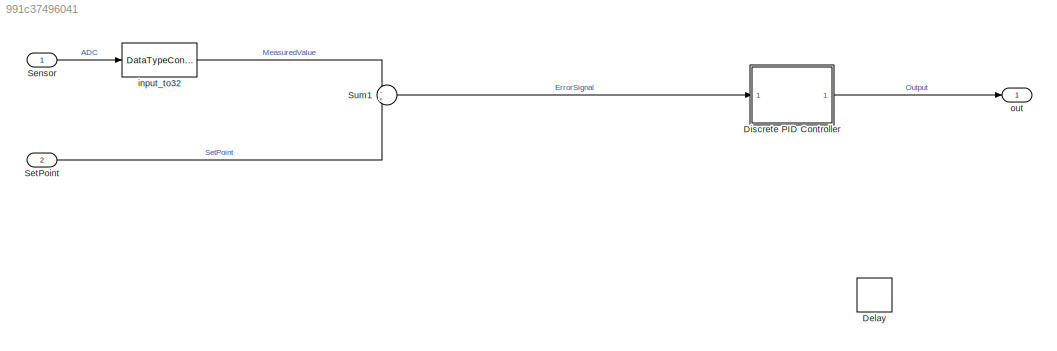
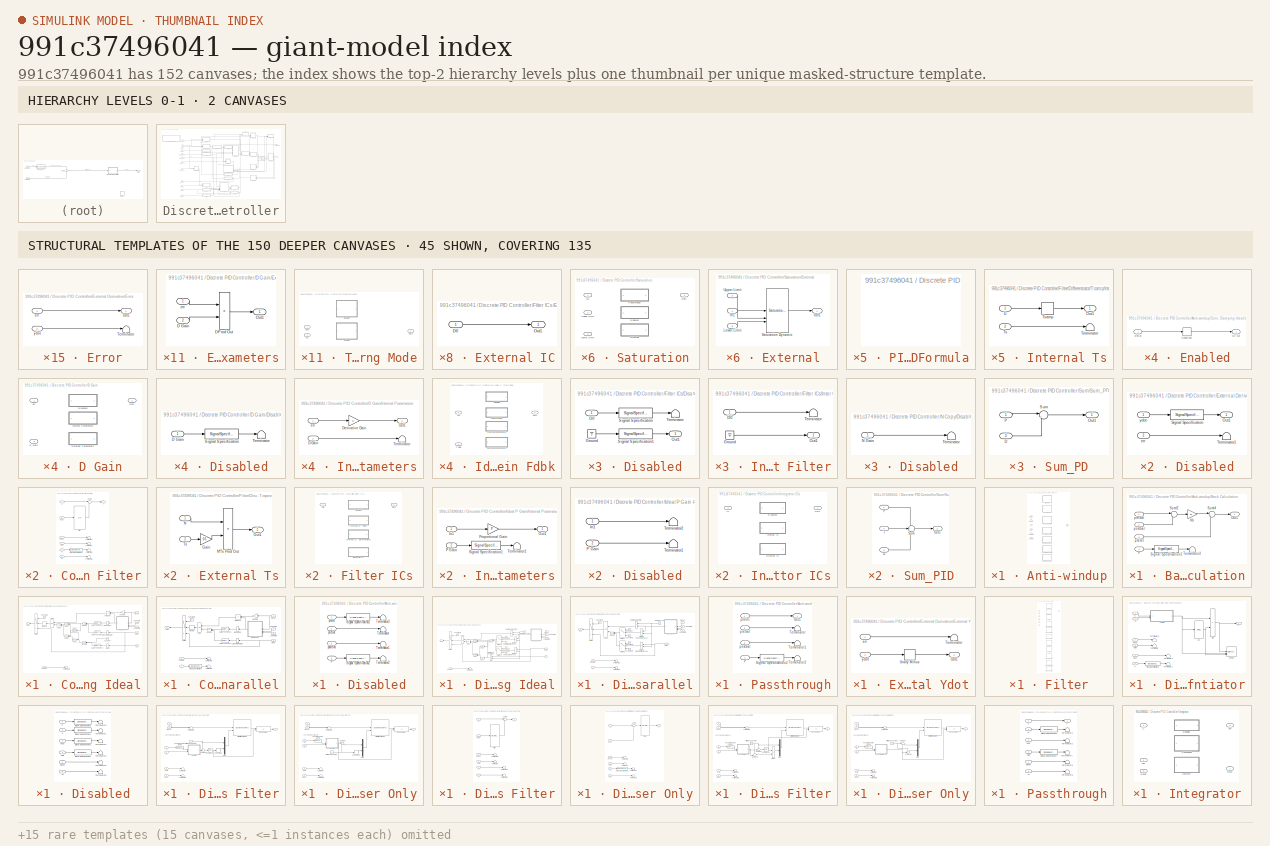
[diagram: thumbnail index - top-2 hierarchy levels (2 canvases) + 45 structural-template representatives of the remaining 150 canvases]
MODEL slx_991c37496041
KIND model
CONFIG AbsTol = auto
CONFIG EnableMultiTasking = off
CONFIG FixedStep = auto
CONFIG MaxStep = auto
CONFIG MinStep = auto
CONFIG RelTol = 1e-3
CONFIG SampleTimeConstraint = Unconstrained
CONFIG SolverName = VariableStepAuto
CONFIG StartTime = 0.0
CONFIG StopTime = 10.0
BLOCK [Delay] Delay
  InputPortMap = u0
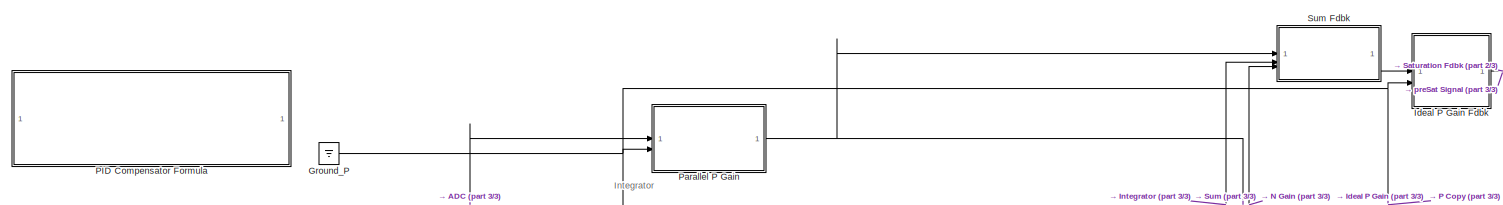
[diagram: Discrete PID Controller - part 1/3, full width, top band]
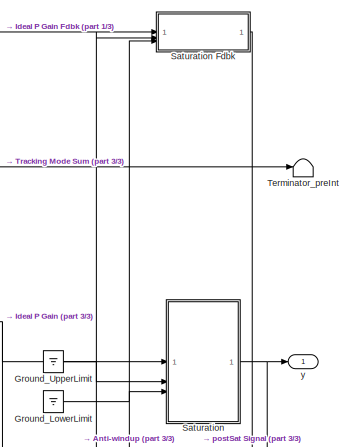
[diagram: Discrete PID Controller - part 2/3, top right region]
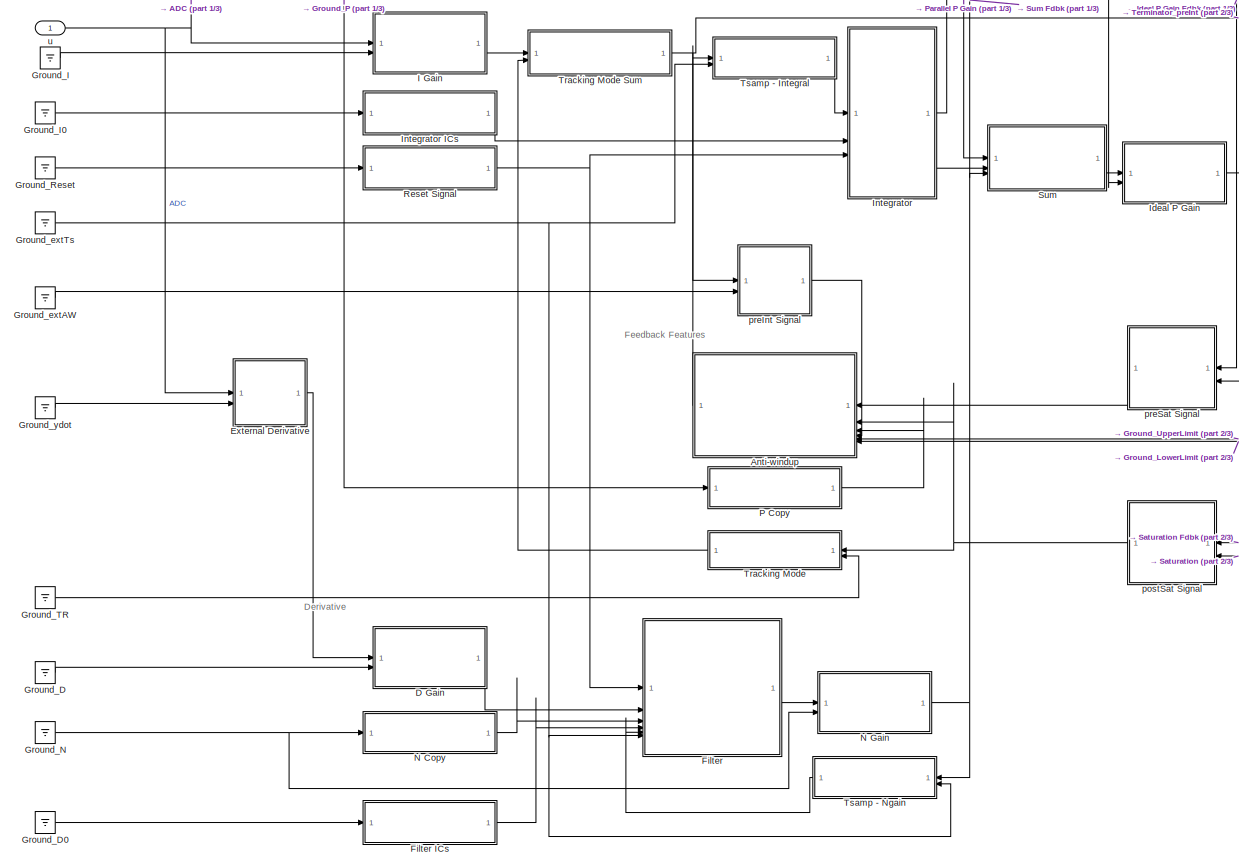
[diagram: Discrete PID Controller - part 3/3, center side, full height]
BLOCK [SubSystem] Discrete PID Controller
  AncestorBlock = hdlsllib/HDL Floating Point\nOperations/Discrete PID Controller
  DeleteFcn = pidpack.PIDConfig.utilCloseTuner(gcb)
  LibrarySourceBlock = hdlsllib/HDL Floating Point\nOperations/Discrete PID Controller
  ModelCloseFcn = pidpack.PIDConfig.utilCloseTuner(gcb)
  NameChangeFcn = pidpack.PIDConfig.utilUpdateTunerName(gcb)
BLOCK [SubSystem] Discrete PID Controller/Anti-windup
  LabelModeActiveChoice = DiscClampingParallel
  Variant = on
  VariantControl = Variant1
  VariantControlMode = label
BLOCK [SubSystem] Discrete PID Controller/Anti-windup/Back Calculation
  VariantControl = BackCalculation
BLOCK [Gain] Discrete PID Controller/Anti-windup/Back Calculation/Kb
  Gain = Kb
  OutMax = KbOutMax
  OutMin = KbOutMin
  ParamMax = KbParamMax
  ParamMin = KbParamMin
  SaturateOnIntegerOverflow = on
BLOCK [Outport] Discrete PID Controller/Anti-windup/Back Calculation/Out1
  SampleTime = SampleTime
BLOCK [Inport] Discrete PID Controller/Anti-windup/Back Calculation/P
  Port = 4
  SampleTime = SampleTime
BLOCK [SignalSpecification] Discrete PID Controller/Anti-windup/Back Calculation/Signal Specification2
  DisableCoverage = on
  OutDataTypeStr = boolean
  SampleTime = SampleTime
BLOCK [Sum] Discrete PID Controller/Anti-windup/Back Calculation/SumI2
  DisableCoverage = on
  Inputs = |-+
  NameLocation = top
  OutMax = SumI2OutMax
  OutMin = SumI2OutMin
  SaturateOnIntegerOverflow = on
BLOCK [Sum] Discrete PID Controller/Anti-windup/Back Calculation/SumI4
  DisableCoverage = on
  Inputs = |++
  NameLocation = top
  OutMax = SumI4OutMax
  OutMin = SumI4OutMin
  SaturateOnIntegerOverflow = on
BLOCK [Terminator] Discrete PID Controller/Anti-windup/Back Calculation/Terminator2
BLOCK [Inport] Discrete PID Controller/Anti-windup/Back Calculation/postSat
  Port = 2
  SampleTime = SampleTime
BLOCK [Inport] Discrete PID Controller/Anti-windup/Back Calculation/preInt
  Port = 3
  SampleTime = SampleTime
BLOCK [Inport] Discrete PID Controller/Anti-windup/Back Calculation/preSat
  SampleTime = SampleTime
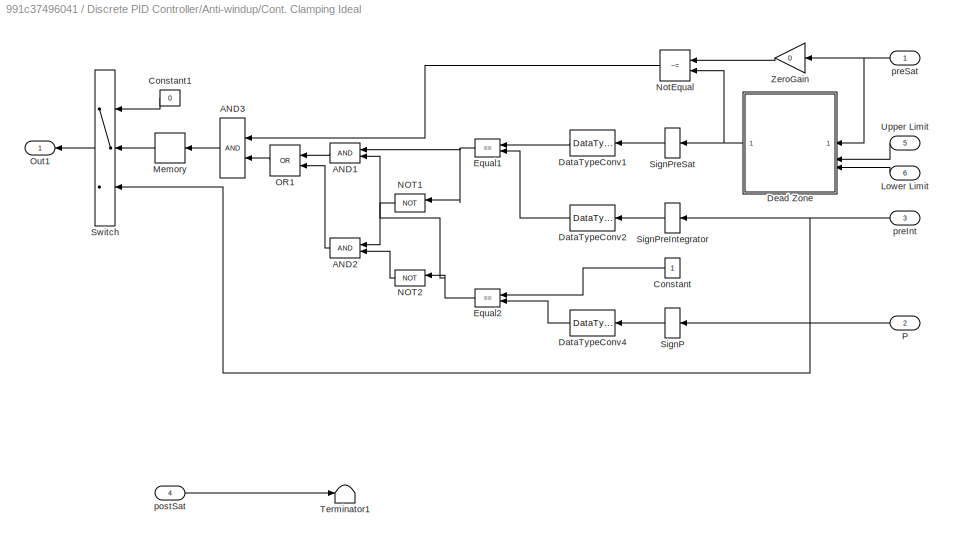
BLOCK [SubSystem] Discrete PID Controller/Anti-windup/Cont. Clamping Ideal
  VariantControl = ContClampingIdeal
BLOCK [Logic] Discrete PID Controller/Anti-windup/Cont. Clamping Ideal/AND1
  DisableCoverage = on
  OutDataTypeStr = boolean
BLOCK [Logic] Discrete PID Controller/Anti-windup/Cont. Clamping Ideal/AND2
  DisableCoverage = on
  OutDataTypeStr = boolean
BLOCK [Logic] Discrete PID Controller/Anti-windup/Cont. Clamping Ideal/AND3
  DisableCoverage = on
  OutDataTypeStr = boolean
BLOCK [Constant] Discrete PID Controller/Anti-windup/Cont. Clamping Ideal/Constant
  DisableCoverage = on
  OutDataTypeStr = int8
  PreserveConstantTs = on
BLOCK [Constant] Discrete PID Controller/Anti-windup/Cont. Clamping Ideal/Constant1
  DisableCoverage = on
  OutDataTypeStr = Inherit: Inherit via back propagation
  PreserveConstantTs = on
  Value = 0
BLOCK [DataTypeConversion] Discrete PID Controller/Anti-windup/Cont. Clamping Ideal/DataTypeConv1
  DisableCoverage = on
  OutDataTypeStr = int8
  RndMeth = Floor
BLOCK [DataTypeConversion] Discrete PID Controller/Anti-windup/Cont. Clamping Ideal/DataTypeConv2
  DisableCoverage = on
  OutDataTypeStr = int8
  RndMeth = Floor
BLOCK [DataTypeConversion] Discrete PID Controller/Anti-windup/Cont. Clamping Ideal/DataTypeConv4
  DisableCoverage = on
  OutDataTypeStr = int8
  RndMeth = Floor
BLOCK [SubSystem] Discrete PID Controller/Anti-windup/Cont. Clamping Ideal/Dead Zone
  AllowZeroVariantControls = on
  LabelModeActiveChoice = Enabled
  Variant = on
  VariantControlMode = label
BLOCK [Outport] Discrete PID Controller/Anti-windup/Cont. Clamping Ideal/Dead Zone/DZ out
BLOCK [SubSystem] Discrete PID Controller/Anti-windup/Cont. Clamping Ideal/Dead Zone/Disabled
  VariantControl = Disabled
BLOCK [SubSystem] Discrete PID Controller/Anti-windup/Cont. Clamping Ideal/Dead Zone/Enabled
  VariantControl = Enabled
BLOCK [Outport] Discrete PID Controller/Anti-windup/Cont. Clamping Ideal/Dead Zone/Enabled/DZ out
BLOCK [DeadZone] Discrete PID Controller/Anti-windup/Cont. Clamping Ideal/Dead Zone/Enabled/DeadZone
  DisableCoverage = on
  LowerValue = LowerSaturationLimit
  UpperValue = UpperSaturationLimit
  ZeroCross = off
BLOCK [Inport] Discrete PID Controller/Anti-windup/Cont. Clamping Ideal/Dead Zone/Enabled/preSat
BLOCK [SubSystem] Discrete PID Controller/Anti-windup/Cont. Clamping Ideal/Dead Zone/External
  VariantControl = External
BLOCK [Outport] Discrete PID Controller/Anti-windup/Cont. Clamping Ideal/Dead Zone/External/DZ out
BLOCK [Reference] Discrete PID Controller/Anti-windup/Cont. Clamping Ideal/Dead Zone/External/Dead Zone Dynamic  REF=simulink/Discontinuities/Dead Zone
Dynamic
  SourceBlock = simulink/Discontinuities/Dead Zone\nDynamic
  SourceType = Dead Zone Dynamic
BLOCK [Inport] Discrete PID Controller/Anti-windup/Cont. Clamping Ideal/Dead Zone/External/Lower Limit
  Port = 3
  SampleTime = SampleTime
BLOCK [Inport] Discrete PID Controller/Anti-windup/Cont. Clamping Ideal/Dead Zone/External/Upper Limit
  Port = 2
  SampleTime = SampleTime
BLOCK [Inport] Discrete PID Controller/Anti-windup/Cont. Clamping Ideal/Dead Zone/External/preSat
BLOCK [Inport] Discrete PID Controller/Anti-windup/Cont. Clamping Ideal/Dead Zone/Lower Limit
  Port = 3
  SampleTime = SampleTime
BLOCK [Inport] Discrete PID Controller/Anti-windup/Cont. Clamping Ideal/Dead Zone/Upper Limit
  Port = 2
  SampleTime = SampleTime
BLOCK [Inport] Discrete PID Controller/Anti-windup/Cont. Clamping Ideal/Dead Zone/preSat
BLOCK [RelationalOperator] Discrete PID Controller/Anti-windup/Cont. Clamping Ideal/Equal1
  DisableCoverage = on
  InputSameDT = off
  Operator = ==
  OutDataTypeStr = boolean
  RndMeth = Floor
  ZeroCross = off
BLOCK [RelationalOperator] Discrete PID Controller/Anti-windup/Cont. Clamping Ideal/Equal2
  DisableCoverage = on
  InputSameDT = off
  Operator = ==
  OutDataTypeStr = boolean
  RndMeth = Floor
  ZeroCross = off
BLOCK [Inport] Discrete PID Controller/Anti-windup/Cont. Clamping Ideal/Lower Limit
  Port = 6
  SampleTime = SampleTime
BLOCK [Memory] Discrete PID Controller/Anti-windup/Cont. Clamping Ideal/Memory
  DisableCoverage = on
  InheritSampleTime = on
BLOCK [Logic] Discrete PID Controller/Anti-windup/Cont. Clamping Ideal/NOT1
  DisableCoverage = on
  Operator = NOT
  OutDataTypeStr = boolean
BLOCK [Logic] Discrete PID Controller/Anti-windup/Cont. Clamping Ideal/NOT2
  DisableCoverage = on
  Operator = NOT
  OutDataTypeStr = boolean
BLOCK [RelationalOperator] Discrete PID Controller/Anti-windup/Cont. Clamping Ideal/NotEqual
  DisableCoverage = on
  InputSameDT = off
  Operator = ~=
  OutDataTypeStr = boolean
  RndMeth = Floor
  ZeroCross = off
BLOCK [Logic] Discrete PID Controller/Anti-windup/Cont. Clamping Ideal/OR1
  DisableCoverage = on
  Operator = OR
  OutDataTypeStr = boolean
BLOCK [Outport] Discrete PID Controller/Anti-windup/Cont. Clamping Ideal/Out1
  SampleTime = SampleTime
BLOCK [Inport] Discrete PID Controller/Anti-windup/Cont. Clamping Ideal/P
  Port = 2
  SampleTime = SampleTime
BLOCK [Signum] Discrete PID Controller/Anti-windup/Cont. Clamping Ideal/SignP
  DisableCoverage = on
  ZeroCross = off
BLOCK [Signum] Discrete PID Controller/Anti-windup/Cont. Clamping Ideal/SignPreIntegrator
  DisableCoverage = on
  ZeroCross = off
BLOCK [Signum] Discrete PID Controller/Anti-windup/Cont. Clamping Ideal/SignPreSat
  DisableCoverage = on
  ZeroCross = off
BLOCK [Switch] Discrete PID Controller/Anti-windup/Cont. Clamping Ideal/Switch
  Criteria = u2 > Threshold
  ZeroCross = off
BLOCK [Terminator] Discrete PID Controller/Anti-windup/Cont. Clamping Ideal/Terminator1
BLOCK [Inport] Discrete PID Controller/Anti-windup/Cont. Clamping Ideal/Upper Limit
  Port = 5
  SampleTime = SampleTime
BLOCK [Gain] Discrete PID Controller/Anti-windup/Cont. Clamping Ideal/ZeroGain
  DisableCoverage = on
  Gain = 0
  OutDataTypeStr = Inherit: Same as input
  ParamDataTypeStr = Inherit: Same as input
  SaturateOnIntegerOverflow = on
BLOCK [Inport] Discrete PID Controller/Anti-windup/Cont. Clamping Ideal/postSat
  Port = 4
  SampleTime = SampleTime
BLOCK [Inport] Discrete PID Controller/Anti-windup/Cont. Clamping Ideal/preInt
  Port = 3
  SampleTime = SampleTime
BLOCK [Inport] Discrete PID Controller/Anti-windup/Cont. Clamping Ideal/preSat
  SampleTime = SampleTime
BLOCK [SubSystem] Discrete PID Controller/Anti-windup/Cont. Clamping Parallel
  VariantControl = ContClampingParallel
BLOCK [Logic] Discrete PID Controller/Anti-windup/Cont. Clamping Parallel/AND3
  DisableCoverage = on
  OutDataTypeStr = boolean
BLOCK [Constant] Discrete PID Controller/Anti-windup/Cont. Clamping Parallel/Constant1
  DisableCoverage = on
  OutDataTypeStr = Inherit: Inherit via back propagation
  PreserveConstantTs = on
  Value = 0
BLOCK [DataTypeConversion] Discrete PID Controller/Anti-windup/Cont. Clamping Parallel/DataTypeConv1
  DisableCoverage = on
  OutDataTypeStr = int8
  RndMeth = Floor
BLOCK [DataTypeConversion] Discrete PID Controller/Anti-windup/Cont. Clamping Parallel/DataTypeConv2
  DisableCoverage = on
  OutDataTypeStr = int8
  RndMeth = Floor
BLOCK [SubSystem] Discrete PID Controller/Anti-windup/Cont. Clamping Parallel/Dead Zone
  AllowZeroVariantControls = on
  LabelModeActiveChoice = Enabled
  Variant = on
  VariantControlMode = label
BLOCK [Outport] Discrete PID Controller/Anti-windup/Cont. Clamping Parallel/Dead Zone/DZ out
BLOCK [SubSystem] Discrete PID Controller/Anti-windup/Cont. Clamping Parallel/Dead Zone/Disabled
  VariantControl = Disabled
BLOCK [SubSystem] Discrete PID Controller/Anti-windup/Cont. Clamping Parallel/Dead Zone/Enabled
  VariantControl = Enabled
BLOCK [Outport] Discrete PID Controller/Anti-windup/Cont. Clamping Parallel/Dead Zone/Enabled/DZ out
BLOCK [DeadZone] Discrete PID Controller/Anti-windup/Cont. Clamping Parallel/Dead Zone/Enabled/DeadZone
  DisableCoverage = on
  LowerValue = LowerSaturationLimit
  UpperValue = UpperSaturationLimit
  ZeroCross = off
BLOCK [Inport] Discrete PID Controller/Anti-windup/Cont. Clamping Parallel/Dead Zone/Enabled/preSat
BLOCK [SubSystem] Discrete PID Controller/Anti-windup/Cont. Clamping Parallel/Dead Zone/External
  VariantControl = External
BLOCK [Outport] Discrete PID Controller/Anti-windup/Cont. Clamping Parallel/Dead Zone/External/DZ out
BLOCK [Reference] Discrete PID Controller/Anti-windup/Cont. Clamping Parallel/Dead Zone/External/Dead Zone Dynamic  REF=simulink/Discontinuities/Dead Zone
Dynamic
  SourceBlock = simulink/Discontinuities/Dead Zone\nDynamic
  SourceType = Dead Zone Dynamic
BLOCK [Inport] Discrete PID Controller/Anti-windup/Cont. Clamping Parallel/Dead Zone/External/Lower Limit
  Port = 3
  SampleTime = SampleTime
BLOCK [Inport] Discrete PID Controller/Anti-windup/Cont. Clamping Parallel/Dead Zone/External/Upper Limit
  Port = 2
  SampleTime = SampleTime
BLOCK [Inport] Discrete PID Controller/Anti-windup/Cont. Clamping Parallel/Dead Zone/External/preSat
BLOCK [Inport] Discrete PID Controller/Anti-windup/Cont. Clamping Parallel/Dead Zone/Lower Limit
  Port = 3
  SampleTime = SampleTime
BLOCK [Inport] Discrete PID Controller/Anti-windup/Cont. Clamping Parallel/Dead Zone/Upper Limit
  Port = 2
  SampleTime = SampleTime
BLOCK [Inport] Discrete PID Controller/Anti-windup/Cont. Clamping Parallel/Dead Zone/preSat
BLOCK [RelationalOperator] Discrete PID Controller/Anti-windup/Cont. Clamping Parallel/Equal1
  DisableCoverage = on
  InputSameDT = off
  Operator = ==
  OutDataTypeStr = boolean
  RndMeth = Floor
  ZeroCross = off
BLOCK [Inport] Discrete PID Controller/Anti-windup/Cont. Clamping Parallel/Lower Limit
  Port = 6
  SampleTime = SampleTime
BLOCK [Memory] Discrete PID Controller/Anti-windup/Cont. Clamping Parallel/Memory
  DisableCoverage = on
  InheritSampleTime = on
BLOCK [RelationalOperator] Discrete PID Controller/Anti-windup/Cont. Clamping Parallel/NotEqual
  DisableCoverage = on
  InputSameDT = off
  Operator = ~=
  OutDataTypeStr = boolean
  RndMeth = Floor
  ZeroCross = off
BLOCK [Outport] Discrete PID Controller/Anti-windup/Cont. Clamping Parallel/Out1
  SampleTime = SampleTime
BLOCK [Inport] Discrete PID Controller/Anti-windup/Cont. Clamping Parallel/P
  Port = 4
  SampleTime = SampleTime
BLOCK [Signum] Discrete PID Controller/Anti-windup/Cont. Clamping Parallel/SignPreIntegrator
  DisableCoverage = on
  ZeroCross = off
BLOCK [Signum] Discrete PID Controller/Anti-windup/Cont. Clamping Parallel/SignPreSat
  DisableCoverage = on
  ZeroCross = off
BLOCK [SignalSpecification] Discrete PID Controller/Anti-windup/Cont. Clamping Parallel/Signal Specification2
  DisableCoverage = on
  OutDataTypeStr = boolean
  SampleTime = SampleTime
BLOCK [Switch] Discrete PID Controller/Anti-windup/Cont. Clamping Parallel/Switch
  Criteria = u2 > Threshold
  ZeroCross = off
BLOCK [Terminator] Discrete PID Controller/Anti-windup/Cont. Clamping Parallel/Terminator1
BLOCK [Terminator] Discrete PID Controller/Anti-windup/Cont. Clamping Parallel/Terminator2
BLOCK [Inport] Discrete PID Controller/Anti-windup/Cont. Clamping Parallel/Upper Limit
  Port = 5
  SampleTime = SampleTime
BLOCK [Gain] Discrete PID Controller/Anti-windup/Cont. Clamping Parallel/ZeroGain
  DisableCoverage = on
  Gain = 0
  OutDataTypeStr = Inherit: Same as input
  ParamDataTypeStr = Inherit: Same as input
  SaturateOnIntegerOverflow = on
BLOCK [Inport] Discrete PID Controller/Anti-windup/Cont. Clamping Parallel/postSat
  Port = 3
  SampleTime = SampleTime
BLOCK [Inport] Discrete PID Controller/Anti-windup/Cont. Clamping Parallel/preInt
  Port = 2
  SampleTime = SampleTime
BLOCK [Inport] Discrete PID Controller/Anti-windup/Cont. Clamping Parallel/preSat
  SampleTime = SampleTime
BLOCK [SubSystem] Discrete PID Controller/Anti-windup/Disabled
  VariantControl = Disabled
BLOCK [Inport] Discrete PID Controller/Anti-windup/Disabled/P
  Port = 4
  SampleTime = SampleTime
BLOCK [SignalSpecification] Discrete PID Controller/Anti-windup/Disabled/Signal Specification1
  DisableCoverage = on
  OutDataTypeStr = boolean
  SampleTime = SampleTime
BLOCK [SignalSpecification] Discrete PID Controller/Anti-windup/Disabled/Signal Specification2
  DisableCoverage = on
  OutDataTypeStr = boolean
  SampleTime = SampleTime
BLOCK [Terminator] Discrete PID Controller/Anti-windup/Disabled/Terminator
BLOCK [Terminator] Discrete PID Controller/Anti-windup/Disabled/Terminator1
BLOCK [Terminator] Discrete PID Controller/Anti-windup/Disabled/Terminator2
BLOCK [Terminator] Discrete PID Controller/Anti-windup/Disabled/Terminator3
BLOCK [Inport] Discrete PID Controller/Anti-windup/Disabled/postSat
  Port = 3
  SampleTime = SampleTime
BLOCK [Inport] Discrete PID Controller/Anti-windup/Disabled/preInt
  SampleTime = SampleTime
BLOCK [Inport] Discrete PID Controller/Anti-windup/Disabled/preSat
  Port = 2
  SampleTime = SampleTime
BLOCK [SubSystem] Discrete PID Controller/Anti-windup/Disc. Clamping Ideal
  VariantControl = DiscClampingIdeal
BLOCK [Logic] Discrete PID Controller/Anti-windup/Disc. Clamping Ideal/AND1
  DisableCoverage = on
  OutDataTypeStr = boolean
BLOCK [Logic] Discrete PID Controller/Anti-windup/Disc. Clamping Ideal/AND2
  DisableCoverage = on
  OutDataTypeStr = boolean
BLOCK [Logic] Discrete PID Controller/Anti-windup/Disc. Clamping Ideal/AND3
  DisableCoverage = on
  OutDataTypeStr = boolean
BLOCK [Constant] Discrete PID Controller/Anti-windup/Disc. Clamping Ideal/Clamping_zero
  DisableCoverage = on
  OutDataTypeStr = fixdt(1,32,16, 'DataTypeOverride', 'Off')
  OutMax = ClampingZeroOutMax
  OutMin = ClampingZeroOutMin
  Value = 0
BLOCK [Constant] Discrete PID Controller/Anti-windup/Disc. Clamping Ideal/Constant1
  DisableCoverage = on
  OutDataTypeStr = Inherit: Inherit via back propagation
  PreserveConstantTs = on
  Value = 0
BLOCK [Constant] Discrete PID Controller/Anti-windup/Disc. Clamping Ideal/Constant4
  DisableCoverage = on
  OutDataTypeStr = int8
BLOCK [Constant] Discrete PID Controller/Anti-windup/Disc. Clamping Ideal/Constant5
  DisableCoverage = on
  OutDataTypeStr = int8
  Value = -1
BLOCK [Constant] Discrete PID Controller/Anti-windup/Disc. Clamping Ideal/Constant6
  DisableCoverage = on
  OutDataTypeStr = int8
BLOCK [Constant] Discrete PID Controller/Anti-windup/Disc. Clamping Ideal/Constant7
  DisableCoverage = on
  OutDataTypeStr = int8
  Value = -1
BLOCK [SubSystem] Discrete PID Controller/Anti-windup/Disc. Clamping Ideal/Dead Zone
  AllowZeroVariantControls = on
  LabelModeActiveChoice = Enabled
  Variant = on
  VariantControlMode = label
BLOCK [Outport] Discrete PID Controller/Anti-windup/Disc. Clamping Ideal/Dead Zone/DZ out
BLOCK [SubSystem] Discrete PID Controller/Anti-windup/Disc. Clamping Ideal/Dead Zone/Disabled
  VariantControl = Disabled
BLOCK [SubSystem] Discrete PID Controller/Anti-windup/Disc. Clamping Ideal/Dead Zone/Enabled
  VariantControl = Enabled
BLOCK [Outport] Discrete PID Controller/Anti-windup/Disc. Clamping Ideal/Dead Zone/Enabled/DZ out
BLOCK [DeadZone] Discrete PID Controller/Anti-windup/Disc. Clamping Ideal/Dead Zone/Enabled/DeadZone
  DisableCoverage = on
  LowerValue = LowerSaturationLimit
  UpperValue = UpperSaturationLimit
  ZeroCross = off
BLOCK [Inport] Discrete PID Controller/Anti-windup/Disc. Clamping Ideal/Dead Zone/Enabled/preSat
BLOCK [SubSystem] Discrete PID Controller/Anti-windup/Disc. Clamping Ideal/Dead Zone/External
  VariantControl = External
BLOCK [Outport] Discrete PID Controller/Anti-windup/Disc. Clamping Ideal/Dead Zone/External/DZ out
BLOCK [Reference] Discrete PID Controller/Anti-windup/Disc. Clamping Ideal/Dead Zone/External/Dead Zone Dynamic  REF=simulink/Discontinuities/Dead Zone
Dynamic
  SourceBlock = simulink/Discontinuities/Dead Zone\nDynamic
  SourceType = Dead Zone Dynamic
BLOCK [Inport] Discrete PID Controller/Anti-windup/Disc. Clamping Ideal/Dead Zone/External/Lower Limit
  Port = 3
  SampleTime = SampleTime
BLOCK [Inport] Discrete PID Controller/Anti-windup/Disc. Clamping Ideal/Dead Zone/External/Upper Limit
  Port = 2
  SampleTime = SampleTime
BLOCK [Inport] Discrete PID Controller/Anti-windup/Disc. Clamping Ideal/Dead Zone/External/preSat
BLOCK [Inport] Discrete PID Controller/Anti-windup/Disc. Clamping Ideal/Dead Zone/Lower Limit
  Port = 3
  SampleTime = SampleTime
BLOCK [Inport] Discrete PID Controller/Anti-windup/Disc. Clamping Ideal/Dead Zone/Upper Limit
  Port = 2
  SampleTime = SampleTime
BLOCK [Inport] Discrete PID Controller/Anti-windup/Disc. Clamping Ideal/Dead Zone/preSat
BLOCK [RelationalOperator] Discrete PID Controller/Anti-windup/Disc. Clamping Ideal/Equal1
  DisableCoverage = on
  InputSameDT = off
  Operator = ==
  OutDataTypeStr = boolean
  RndMeth = Floor
  ZeroCross = off
BLOCK [Inport] Discrete PID Controller/Anti-windup/Disc. Clamping Ideal/Lower Limit
  Port = 6
  SampleTime = SampleTime
BLOCK [Logic] Discrete PID Controller/Anti-windup/Disc. Clamping Ideal/NOT1
  DisableCoverage = on
  Operator = NOT
  OutDataTypeStr = boolean
BLOCK [Logic] Discrete PID Controller/Anti-windup/Disc. Clamping Ideal/NOT2
  DisableCoverage = on
  Operator = NOT
  OutDataTypeStr = boolean
BLOCK [Logic] Discrete PID Controller/Anti-windup/Disc. Clamping Ideal/OR1
  DisableCoverage = on
  Operator = OR
  OutDataTypeStr = boolean
BLOCK [Outport] Discrete PID Controller/Anti-windup/Disc. Clamping Ideal/Out1
  SampleTime = SampleTime
BLOCK [Inport] Discrete PID Controller/Anti-windup/Disc. Clamping Ideal/P
  Port = 2
  SampleTime = SampleTime
BLOCK [RelationalOperator] Discrete PID Controller/Anti-windup/Disc. Clamping Ideal/Relational Operator
  DisableCoverage = on
  InputSameDT = off
  Operator = ~=
  OutDataTypeStr = boolean
  RndMeth = Simplest
BLOCK [RelationalOperator] Discrete PID Controller/Anti-windup/Disc. Clamping Ideal/Relational Operator1
  DisableCoverage = on
  InputSameDT = off
  Operator = >
  OutDataTypeStr = boolean
  RndMeth = Simplest
BLOCK [Switch] Discrete PID Controller/Anti-windup/Disc. Clamping Ideal/Switch
  Criteria = u2 > Threshold
  ZeroCross = off
BLOCK [Switch] Discrete PID Controller/Anti-windup/Disc. Clamping Ideal/Switch2
  Criteria = u2 > Threshold
  DisableCoverage = on
  InputSameDT = off
  SaturateOnIntegerOverflow = off
BLOCK [Switch] Discrete PID Controller/Anti-windup/Disc. Clamping Ideal/Switch3
  Criteria = u2 > Threshold
  DisableCoverage = on
  InputSameDT = off
  SaturateOnIntegerOverflow = off
BLOCK [Terminator] Discrete PID Controller/Anti-windup/Disc. Clamping Ideal/Terminator1
BLOCK [Inport] Discrete PID Controller/Anti-windup/Disc. Clamping Ideal/Upper Limit
  Port = 5
  SampleTime = SampleTime
BLOCK [RelationalOperator] Discrete PID Controller/Anti-windup/Disc. Clamping Ideal/fix for DT propagation issue
  DisableCoverage = on
  InputSameDT = off
  Operator = >
  OutDataTypeStr = boolean
  RndMeth = Simplest
BLOCK [RelationalOperator] Discrete PID Controller/Anti-windup/Disc. Clamping Ideal/fix for DT propagation issue1
  DisableCoverage = on
  InputSameDT = off
  Operator = >
  OutDataTypeStr = boolean
  RndMeth = Simplest
BLOCK [Inport] Discrete PID Controller/Anti-windup/Disc. Clamping Ideal/postSat
  Port = 4
  SampleTime = SampleTime
BLOCK [Inport] Discrete PID Controller/Anti-windup/Disc. Clamping Ideal/preInt
  Port = 3
  SampleTime = SampleTime
BLOCK [Inport] Discrete PID Controller/Anti-windup/Disc. Clamping Ideal/preSat
  SampleTime = SampleTime
BLOCK [SubSystem] Discrete PID Controller/Anti-windup/Disc. Clamping Parallel
  VariantControl = DiscClampingParallel
BLOCK [Logic] Discrete PID Controller/Anti-windup/Disc. Clamping Parallel/AND3
  DisableCoverage = on
  OutDataTypeStr = boolean
BLOCK [Constant] Discrete PID Controller/Anti-windup/Disc. Clamping Parallel/Clamping_zero
  DisableCoverage = on
  OutDataTypeStr = fixdt(1,32,16, 'DataTypeOverride', 'Off')
  OutMax = ClampingZeroOutMax
  OutMin = ClampingZeroOutMin
  SampleTime = 0.0078125
  Value = 0
BLOCK [Constant] Discrete PID Controller/Anti-windup/Disc. Clamping Parallel/Constant
  DisableCoverage = on
  OutDataTypeStr = int8
  SampleTime = 0.0078125
BLOCK [Constant] Discrete PID Controller/Anti-windup/Disc. Clamping Parallel/Constant1
  DisableCoverage = on
  OutDataTypeStr = Inherit: Inherit via back propagation
  PreserveConstantTs = on
  SampleTime = 0.0078125
  Value = 0
BLOCK [Constant] Discrete PID Controller/Anti-windup/Disc. Clamping Parallel/Constant2
  DisableCoverage = on
  OutDataTypeStr = int8
  SampleTime = 0.0078125
  Value = -1
BLOCK [Constant] Discrete PID Controller/Anti-windup/Disc. Clamping Parallel/Constant3
  DisableCoverage = on
  OutDataTypeStr = int8
  SampleTime = 0.0078125
BLOCK [Constant] Discrete PID Controller/Anti-windup/Disc. Clamping Parallel/Constant4
  DisableCoverage = on
  OutDataTypeStr = int8
  SampleTime = 0.0078125
  Value = -1
BLOCK [SubSystem] Discrete PID Controller/Anti-windup/Disc. Clamping Parallel/Dead Zone
  AllowZeroVariantControls = on
  LabelModeActiveChoice = Enabled
  Variant = on
  VariantControlMode = label
BLOCK [Outport] Discrete PID Controller/Anti-windup/Disc. Clamping Parallel/Dead Zone/DZ out
BLOCK [SubSystem] Discrete PID Controller/Anti-windup/Disc. Clamping Parallel/Dead Zone/Disabled
  VariantControl = Disabled
BLOCK [SubSystem] Discrete PID Controller/Anti-windup/Disc. Clamping Parallel/Dead Zone/Enabled
  VariantControl = Enabled
BLOCK [Outport] Discrete PID Controller/Anti-windup/Disc. Clamping Parallel/Dead Zone/Enabled/DZ out
BLOCK [DeadZone] Discrete PID Controller/Anti-windup/Disc. Clamping Parallel/Dead Zone/Enabled/DeadZone
  DisableCoverage = on
  LowerValue = LowerSaturationLimit
  UpperValue = UpperSaturationLimit
  ZeroCross = off
BLOCK [Inport] Discrete PID Controller/Anti-windup/Disc. Clamping Parallel/Dead Zone/Enabled/preSat
BLOCK [SubSystem] Discrete PID Controller/Anti-windup/Disc. Clamping Parallel/Dead Zone/External
  VariantControl = External
BLOCK [Outport] Discrete PID Controller/Anti-windup/Disc. Clamping Parallel/Dead Zone/External/DZ out
BLOCK [Reference] Discrete PID Controller/Anti-windup/Disc. Clamping Parallel/Dead Zone/External/Dead Zone Dynamic  REF=simulink/Discontinuities/Dead Zone
Dynamic
  SourceBlock = simulink/Discontinuities/Dead Zone\nDynamic
  SourceType = Dead Zone Dynamic
BLOCK [Inport] Discrete PID Controller/Anti-windup/Disc. Clamping Parallel/Dead Zone/External/Lower Limit
  Port = 3
  SampleTime = SampleTime
BLOCK [Inport] Discrete PID Controller/Anti-windup/Disc. Clamping Parallel/Dead Zone/External/Upper Limit
  Port = 2
  SampleTime = SampleTime
BLOCK [Inport] Discrete PID Controller/Anti-windup/Disc. Clamping Parallel/Dead Zone/External/preSat
BLOCK [Inport] Discrete PID Controller/Anti-windup/Disc. Clamping Parallel/Dead Zone/Lower Limit
  Port = 3
  SampleTime = SampleTime
BLOCK [Inport] Discrete PID Controller/Anti-windup/Disc. Clamping Parallel/Dead Zone/Upper Limit
  Port = 2
  SampleTime = SampleTime
BLOCK [Inport] Discrete PID Controller/Anti-windup/Disc. Clamping Parallel/Dead Zone/preSat
BLOCK [RelationalOperator] Discrete PID Controller/Anti-windup/Disc. Clamping Parallel/Equal1
  DisableCoverage = on
  InputSameDT = off
  Operator = ==
  OutDataTypeStr = boolean
  RndMeth = Floor
  ZeroCross = off
BLOCK [Inport] Discrete PID Controller/Anti-windup/Disc. Clamping Parallel/Lower Limit
  Port = 6
  SampleTime = SampleTime
BLOCK [Outport] Discrete PID Controller/Anti-windup/Disc. Clamping Parallel/Out1
  SampleTime = SampleTime
BLOCK [Inport] Discrete PID Controller/Anti-windup/Disc. Clamping Parallel/P
  OutDataTypeStr = fixdt(1,32,16, 'DataTypeOverride', 'Off')
  Port = 4
  SampleTime = SampleTime
BLOCK [RelationalOperator] Discrete PID Controller/Anti-windup/Disc. Clamping Parallel/Relational Operator
  DisableCoverage = on
  InputSameDT = off
  Operator = ~=
  OutDataTypeStr = boolean
  RndMeth = Simplest
BLOCK [Switch] Discrete PID Controller/Anti-windup/Disc. Clamping Parallel/Switch
  Criteria = u2 > Threshold
  SampleTime = SampleTime
  ZeroCross = off
BLOCK [Switch] Discrete PID Controller/Anti-windup/Disc. Clamping Parallel/Switch1
  Criteria = u2 > Threshold
  DisableCoverage = on
  InputSameDT = off
  SaturateOnIntegerOverflow = off
BLOCK [Switch] Discrete PID Controller/Anti-windup/Disc. Clamping Parallel/Switch2
  Criteria = u2 > Threshold
  DisableCoverage = on
  InputSameDT = off
  SaturateOnIntegerOverflow = off
BLOCK [Terminator] Discrete PID Controller/Anti-windup/Disc. Clamping Parallel/Terminator1
BLOCK [Terminator] Discrete PID Controller/Anti-windup/Disc. Clamping Parallel/Terminator2
BLOCK [Inport] Discrete PID Controller/Anti-windup/Disc. Clamping Parallel/Upper Limit
  Port = 5
  SampleTime = SampleTime
BLOCK [RelationalOperator] Discrete PID Controller/Anti-windup/Disc. Clamping Parallel/fix for DT propagation issue
  DisableCoverage = on
  InputSameDT = off
  Operator = >
  OutDataTypeStr = boolean
  RndMeth = Simplest
BLOCK [RelationalOperator] Discrete PID Controller/Anti-windup/Disc. Clamping Parallel/fix for DT propagation issue1
  DisableCoverage = on
  InputSameDT = off
  Operator = >
  OutDataTypeStr = boolean
  RndMeth = Simplest
BLOCK [Inport] Discrete PID Controller/Anti-windup/Disc. Clamping Parallel/postSat
  Port = 3
  SampleTime = SampleTime
BLOCK [Inport] Discrete PID Controller/Anti-windup/Disc. Clamping Parallel/preInt
  Port = 2
  SampleTime = SampleTime
BLOCK [Inport] Discrete PID Controller/Anti-windup/Disc. Clamping Parallel/preSat
  SampleTime = SampleTime
BLOCK [Inport] Discrete PID Controller/Anti-windup/Lower Limit
  Port = 6
  SampleTime = SampleTime
BLOCK [Outport] Discrete PID Controller/Anti-windup/Out1
  SampleTime = SampleTime
BLOCK [Inport] Discrete PID Controller/Anti-windup/P
  Port = 3
  SampleTime = SampleTime
BLOCK [SubSystem] Discrete PID Controller/Anti-windup/Passthrough
  VariantControl = Passthrough
BLOCK [Outport] Discrete PID Controller/Anti-windup/Passthrough/Out1
  SampleTime = SampleTime
BLOCK [Inport] Discrete PID Controller/Anti-windup/Passthrough/P
  Port = 4
  SampleTime = SampleTime
BLOCK [SignalSpecification] Discrete PID Controller/Anti-windup/Passthrough/Signal Specification2
  DisableCoverage = on
  OutDataTypeStr = boolean
  SampleTime = SampleTime
BLOCK [Terminator] Discrete PID Controller/Anti-windup/Passthrough/Terminator
BLOCK [Terminator] Discrete PID Controller/Anti-windup/Passthrough/Terminator1
BLOCK [Terminator] Discrete PID Controller/Anti-windup/Passthrough/Terminator2
BLOCK [Inport] Discrete PID Controller/Anti-windup/Passthrough/postSat
  Port = 3
  SampleTime = SampleTime
BLOCK [Inport] Discrete PID Controller/Anti-windup/Passthrough/preInt
  SampleTime = SampleTime
BLOCK [Inport] Discrete PID Controller/Anti-windup/Passthrough/preSat
  Port = 2
  SampleTime = SampleTime
BLOCK [Inport] Discrete PID Controller/Anti-windup/Upper Limit
  Port = 5
  SampleTime = SampleTime
BLOCK [Inport] Discrete PID Controller/Anti-windup/postSat
  Port = 2
  SampleTime = SampleTime
BLOCK [Inport] Discrete PID Controller/Anti-windup/preInt
  Port = 4
  SampleTime = SampleTime
BLOCK [Inport] Discrete PID Controller/Anti-windup/preSat
  SampleTime = SampleTime
BLOCK [SubSystem] Discrete PID Controller/D Gain
  LabelModeActiveChoice = InternalParameters
  Variant = on
  VariantControl = Variant1
  VariantControlMode = label
BLOCK [Inport] Discrete PID Controller/D Gain/D Gain
  Port = 2
  SampleTime = SampleTime
BLOCK [SubSystem] Discrete PID Controller/D Gain/Disabled
  VariantControl = Disabled
BLOCK [Inport] Discrete PID Controller/D Gain/Disabled/D Gain
  SampleTime = SampleTime
BLOCK [SignalSpecification] Discrete PID Controller/D Gain/Disabled/Signal Specification
  DisableCoverage = on
  OutDataTypeStr = boolean
  SampleTime = SampleTime
BLOCK [Terminator] Discrete PID Controller/D Gain/Disabled/Terminator
BLOCK [SubSystem] Discrete PID Controller/D Gain/External Parameters
  VariantControl = ExternalParameters
BLOCK [Inport] Discrete PID Controller/D Gain/External Parameters/D Gain
  Port = 2
  SampleTime = SampleTime
BLOCK [Product] Discrete PID Controller/D Gain/External Parameters/DProd Out
  OutDataTypeStr = fixdt(1,32,16, 'DataTypeOverride', 'Off')
  OutMax = DOutMax
  OutMin = DOutMin
  SampleTime = SampleTime
  SaturateOnIntegerOverflow = on
BLOCK [Outport] Discrete PID Controller/D Gain/External Parameters/Out1
  SampleTime = SampleTime
BLOCK [Inport] Discrete PID Controller/D Gain/External Parameters/err
  SampleTime = SampleTime
BLOCK [SubSystem] Discrete PID Controller/D Gain/Internal Parameters
  VariantControl = InternalParameters
BLOCK [Inport] Discrete PID Controller/D Gain/Internal Parameters/D Gain
  OutDataTypeStr = fixdt(1,32,16, 'DataTypeOverride', 'Off')
  Port = 2
  SampleTime = SampleTime
BLOCK [Gain] Discrete PID Controller/D Gain/Internal Parameters/Derivative Gain
  DisableCoverage = on
  Gain = D
  OutDataTypeStr = fixdt(1,32,16, 'DataTypeOverride', 'Off')
  OutMax = DOutMax
  OutMin = DOutMin
  ParamDataTypeStr = fixdt(1,32,16, 'DataTypeOverride', 'Off')
  ParamMax = DParamMax
  ParamMin = DParamMin
  SaturateOnIntegerOverflow = on
BLOCK [Outport] Discrete PID Controller/D Gain/Internal Parameters/Out1
  OutDataTypeStr = fixdt(1,32,16, 'DataTypeOverride', 'Off')
  SampleTime = SampleTime
BLOCK [Terminator] Discrete PID Controller/D Gain/Internal Parameters/Terminator
BLOCK [Inport] Discrete PID Controller/D Gain/Internal Parameters/err
  SampleTime = SampleTime
BLOCK [Outport] Discrete PID Controller/D Gain/Out1
  SampleTime = SampleTime
BLOCK [Inport] Discrete PID Controller/D Gain/err
  SampleTime = SampleTime
BLOCK [SubSystem] Discrete PID Controller/External Derivative
  LabelModeActiveChoice = ErrorSignal
  Variant = on
  VariantControl = Variant1
  VariantControlMode = label
BLOCK [SubSystem] Discrete PID Controller/External Derivative/Disabled
  VariantControl = Disabled
BLOCK [Outport] Discrete PID Controller/External Derivative/Disabled/Out1
  SampleTime = SampleTime
BLOCK [SignalSpecification] Discrete PID Controller/External Derivative/Disabled/Signal Specification
  DisableCoverage = on
  OutDataTypeStr = boolean
  SampleTime = SampleTime
BLOCK [Terminator] Discrete PID Controller/External Derivative/Disabled/Terminator1
BLOCK [Inport] Discrete PID Controller/External Derivative/Disabled/err
  Port = 2
  SampleTime = SampleTime
BLOCK [Inport] Discrete PID Controller/External Derivative/Disabled/ydot
  SampleTime = SampleTime
BLOCK [SubSystem] Discrete PID Controller/External Derivative/Error
  VariantControl = ErrorSignal
BLOCK [Outport] Discrete PID Controller/External Derivative/Error/Out1
  SampleTime = SampleTime
BLOCK [Terminator] Discrete PID Controller/External Derivative/Error/Terminator
BLOCK [Inport] Discrete PID Controller/External Derivative/Error/err
  SampleTime = SampleTime
BLOCK [Inport] Discrete PID Controller/External Derivative/Error/ydot
  OutDataTypeStr = fixdt(1,32,16, 'DataTypeOverride', 'Off')
  Port = 2
  SampleTime = SampleTime
BLOCK [SubSystem] Discrete PID Controller/External Derivative/External Ydot
  VariantControl = ExternalYdot
BLOCK [Outport] Discrete PID Controller/External Derivative/External Ydot/Out1
  SampleTime = SampleTime
BLOCK [Terminator] Discrete PID Controller/External Derivative/External Ydot/Terminator
BLOCK [UnaryMinus] Discrete PID Controller/External Derivative/External Ydot/Unary Minus
BLOCK [Inport] Discrete PID Controller/External Derivative/External Ydot/err
  SampleTime = SampleTime
BLOCK [Inport] Discrete PID Controller/External Derivative/External Ydot/ydot
  Port = 2
  SampleTime = SampleTime
BLOCK [Outport] Discrete PID Controller/External Derivative/Out1
  SampleTime = SampleTime
BLOCK [Inport] Discrete PID Controller/External Derivative/err
  SampleTime = SampleTime
BLOCK [Inport] Discrete PID Controller/External Derivative/ydot
  Port = 2
  SampleTime = SampleTime
BLOCK [SubSystem] Discrete PID Controller/Filter
  LabelModeActiveChoice = ForwardEulerFilter
  Variant = on
  VariantControlMode = label
BLOCK [SubSystem] Discrete PID Controller/Filter ICs
  LabelModeActiveChoice = InternalICsFilter
  Variant = on
  VariantControl = Variant1
  VariantControlMode = label
BLOCK [Inport] Discrete PID Controller/Filter ICs/D0
  SampleTime = SampleTime
BLOCK [SubSystem] Discrete PID Controller/Filter ICs/Disabled
  VariantControl = Disabled
BLOCK [Inport] Discrete PID Controller/Filter ICs/Disabled/D0
  SampleTime = SampleTime
BLOCK [Ground] Discrete PID Controller/Filter ICs/Disabled/Ground
  DisableCoverage = on
BLOCK [Outport] Discrete PID Controller/Filter ICs/Disabled/Out1
  SampleTime = SampleTime
BLOCK [SignalSpecification] Discrete PID Controller/Filter ICs/Disabled/Signal Specification
  DisableCoverage = on
  OutDataTypeStr = boolean
  SampleTime = SampleTime
BLOCK [SignalSpecification] Discrete PID Controller/Filter ICs/Disabled/Signal Specification1
  DisableCoverage = on
  OutDataTypeStr = boolean
  SampleTime = SampleTime
BLOCK [Terminator] Discrete PID Controller/Filter ICs/Disabled/Terminator
BLOCK [SubSystem] Discrete PID Controller/Filter ICs/External IC
  VariantControl = ExternalICs
BLOCK [Inport] Discrete PID Controller/Filter ICs/External IC/D0
  SampleTime = SampleTime
BLOCK [Outport] Discrete PID Controller/Filter ICs/External IC/Out1
  SampleTime = SampleTime
BLOCK [SubSystem] Discrete PID Controller/Filter ICs/Internal IC - Differentiator
  VariantControl = InternalICsDifferentiator
BLOCK [Inport] Discrete PID Controller/Filter ICs/Internal IC - Differentiator/D0
  SampleTime = SampleTime
BLOCK [Ground] Discrete PID Controller/Filter ICs/Internal IC - Differentiator/Ground
  DisableCoverage = on
BLOCK [Outport] Discrete PID Controller/Filter ICs/Internal IC - Differentiator/Out1
  SampleTime = SampleTime
BLOCK [SignalSpecification] Discrete PID Controller/Filter ICs/Internal IC - Differentiator/Signal Specification
  DisableCoverage = on
  OutDataTypeStr = boolean
  SampleTime = SampleTime
BLOCK [SignalSpecification] Discrete PID Controller/Filter ICs/Internal IC - Differentiator/Signal Specification1
  DisableCoverage = on
  OutDataTypeStr = boolean
  SampleTime = SampleTime
BLOCK [Terminator] Discrete PID Controller/Filter ICs/Internal IC - Differentiator/Terminator
BLOCK [SubSystem] Discrete PID Controller/Filter ICs/Internal IC - Filter
  VariantControl = InternalICsFilter
BLOCK [Inport] Discrete PID Controller/Filter ICs/Internal IC - Filter/D0
  OutDataTypeStr = fixdt(1,32,16, 'DataTypeOverride', 'Off')
  PortDimensions = 1
  SampleTime = SampleTime
BLOCK [Ground] Discrete PID Controller/Filter ICs/Internal IC - Filter/Ground
  DisableCoverage = on
BLOCK [Outport] Discrete PID Controller/Filter ICs/Internal IC - Filter/Out1
  OutDataTypeStr = fixdt(1,32,16, 'DataTypeOverride', 'Off')
  SampleTime = SampleTime
BLOCK [Terminator] Discrete PID Controller/Filter ICs/Internal IC - Filter/Terminator
BLOCK [Outport] Discrete PID Controller/Filter ICs/Out1
  SampleTime = SampleTime
BLOCK [SubSystem] Discrete PID Controller/Filter/Cont. Filter
  VariantControl = ContFilter
BLOCK [SubSystem] Discrete PID Controller/Filter/Cont. Filter Only
  VariantControl = ContFilterOnly
BLOCK [Inport] Discrete PID Controller/Filter/Cont. Filter Only/D0in
  Port = 4
  SampleTime = SampleTime
BLOCK [Integrator] Discrete PID Controller/Filter/Cont. Filter Only/Filter
  DisableCoverage = on
  InitialCondition = InitialConditionForFilter
BLOCK [Inport] Discrete PID Controller/Filter/Cont. Filter Only/N
  Port = 5
  SampleTime = SampleTime
BLOCK [Inport] Discrete PID Controller/Filter/Cont. Filter Only/Nout
  Port = 2
  SampleTime = SampleTime
BLOCK [Inport] Discrete PID Controller/Filter/Cont. Filter Only/Reset
  Port = 3
  SampleTime = SampleTime
BLOCK [SignalSpecification] Discrete PID Controller/Filter/Cont. Filter Only/Signal Specification2
  DisableCoverage = on
  OutDataTypeStr = boolean
  SampleTime = SampleTime
BLOCK [Sum] Discrete PID Controller/Filter/Cont. Filter Only/SumD
  DisableCoverage = on
  Inputs = |+-
  OutMax = SumDOutMax
  OutMin = SumDOutMin
BLOCK [Terminator] Discrete PID Controller/Filter/Cont. Filter Only/Terminator
BLOCK [Terminator] Discrete PID Controller/Filter/Cont. Filter Only/Terminator1
BLOCK [Terminator] Discrete PID Controller/Filter/Cont. Filter Only/Terminator2
BLOCK [Terminator] Discrete PID Controller/Filter/Cont. Filter Only/Terminator3
BLOCK [Inport] Discrete PID Controller/Filter/Cont. Filter Only/Ts
  Port = 6
  SampleTime = SampleTime
BLOCK [Inport] Discrete PID Controller/Filter/Cont. Filter Only/U
  SampleTime = SampleTime
BLOCK [Outport] Discrete PID Controller/Filter/Cont. Filter Only/Y
  SampleTime = SampleTime
BLOCK [Inport] Discrete PID Controller/Filter/Cont. Filter/D0in
  Port = 4
  SampleTime = SampleTime
BLOCK [Integrator] Discrete PID Controller/Filter/Cont. Filter/Filter
  DisableCoverage = on
  InitialCondition = InitialConditionForFilter
  ZeroCross = off
BLOCK [Inport] Discrete PID Controller/Filter/Cont. Filter/N
  Port = 5
  SampleTime = SampleTime
BLOCK [Inport] Discrete PID Controller/Filter/Cont. Filter/Nout
  Port = 2
  SampleTime = SampleTime
BLOCK [Inport] Discrete PID Controller/Filter/Cont. Filter/Reset
  Port = 3
  SampleTime = SampleTime
BLOCK [SignalSpecification] Discrete PID Controller/Filter/Cont. Filter/Signal Specification2
  DisableCoverage = on
  OutDataTypeStr = boolean
  SampleTime = SampleTime
BLOCK [Sum] Discrete PID Controller/Filter/Cont. Filter/SumD
  AccumDataTypeStr = fixdt(1,32,16, 'DataTypeOverride', 'Off')
  DisableCoverage = on
  Inputs = |+-
  OutDataTypeStr = fixdt(1,32,16, 'DataTypeOverride', 'Off')
  OutMax = SumDOutMax
  OutMin = SumDOutMin
  SaturateOnIntegerOverflow = on
BLOCK [Terminator] Discrete PID Controller/Filter/Cont. Filter/Terminator
BLOCK [Terminator] Discrete PID Controller/Filter/Cont. Filter/Terminator1
BLOCK [Terminator] Discrete PID Controller/Filter/Cont. Filter/Terminator2
BLOCK [Terminator] Discrete PID Controller/Filter/Cont. Filter/Terminator3
BLOCK [Inport] Discrete PID Controller/Filter/Cont. Filter/Ts
  Port = 6
  SampleTime = SampleTime
BLOCK [Inport] Discrete PID Controller/Filter/Cont. Filter/U
  SampleTime = SampleTime
BLOCK [Outport] Discrete PID Controller/Filter/Cont. Filter/Y
  SampleTime = SampleTime
BLOCK [Inport] Discrete PID Controller/Filter/D0in
  Port = 4
  SampleTime = SampleTime
BLOCK [SubSystem] Discrete PID Controller/Filter/Differentiator
  VariantControl = Differentiator
BLOCK [Inport] Discrete PID Controller/Filter/Differentiator/D0in
  Port = 3
  SampleTime = SampleTime
BLOCK [DataTypeDuplicate] Discrete PID Controller/Filter/Differentiator/DTDup
  NumInputPorts = 3
BLOCK [Sum] Discrete PID Controller/Filter/Differentiator/Diff
  IconShape = rectangular
  InputSameDT = on
  Inputs = +-
  OutDataTypeStr = Inherit: Inherit via back propagation
  OutMax = DifferentiatorOutMax
  OutMin = DifferentiatorOutMin
  SaturateOnIntegerOverflow = on
BLOCK [Inport] Discrete PID Controller/Filter/Differentiator/N
  Port = 5
  SampleTime = SampleTime
BLOCK [Inport] Discrete PID Controller/Filter/Differentiator/Nout
  Port = 4
  SampleTime = SampleTime
BLOCK [Inport] Discrete PID Controller/Filter/Differentiator/Reset
  Port = 2
  SampleTime = SampleTime
BLOCK [SignalSpecification] Discrete PID Controller/Filter/Differentiator/Signal Specification1
  DisableCoverage = on
  OutDataTypeStr = boolean
  SampleTime = SampleTime
BLOCK [Terminator] Discrete PID Controller/Filter/Differentiator/Terminator
BLOCK [Terminator] Discrete PID Controller/Filter/Differentiator/Terminator1
BLOCK [Terminator] Discrete PID Controller/Filter/Differentiator/Terminator2
BLOCK [Terminator] Discrete PID Controller/Filter/Differentiator/Terminator3
BLOCK [Inport] Discrete PID Controller/Filter/Differentiator/Ts
  Port = 6
  SampleTime = SampleTime
BLOCK [SubSystem] Discrete PID Controller/Filter/Differentiator/Tsamp
  LabelModeActiveChoice = InternalTs
  Variant = on
  VariantControlMode = label
BLOCK [SubSystem] Discrete PID Controller/Filter/Differentiator/Tsamp/External Ts
  VariantControl = ExternalTs
BLOCK [Outport] Discrete PID Controller/Filter/Differentiator/Tsamp/External Ts/Out1
  SampleTime = SampleTime
BLOCK [Inport] Discrete PID Controller/Filter/Differentiator/Tsamp/External Ts/Ts
  Port = 2
  SampleTime = SampleTime
BLOCK [Inport] Discrete PID Controller/Filter/Differentiator/Tsamp/External Ts/U
  SampleTime = SampleTime
BLOCK [Product] Discrete PID Controller/Filter/Differentiator/Tsamp/External Ts/Udiff*Ts Prod Out
  Inputs = */
  OutMax = UdiffTsProdOutMax
  OutMin = UdiffTsProdOutMin
  SampleTime = SampleTime
  SaturateOnIntegerOverflow = on
BLOCK [SubSystem] Discrete PID Controller/Filter/Differentiator/Tsamp/Internal Ts
  VariantControl = InternalTs
BLOCK [Outport] Discrete PID Controller/Filter/Differentiator/Tsamp/Internal Ts/Out1
  SampleTime = SampleTime
BLOCK [Terminator] Discrete PID Controller/Filter/Differentiator/Tsamp/Internal Ts/Terminator
BLOCK [Inport] Discrete PID Controller/Filter/Differentiator/Tsamp/Internal Ts/Ts
  Port = 2
  SampleTime = SampleTime
BLOCK [SampleTimeMath] Discrete PID Controller/Filter/Differentiator/Tsamp/Internal Ts/Tsamp
  SaturateOnIntegerOverflow = on
  TsampMathImp = Offline Scaling Adjustment
  TsampMathOp = /
BLOCK [Inport] Discrete PID Controller/Filter/Differentiator/Tsamp/Internal Ts/U
  SampleTime = SampleTime
BLOCK [Outport] Discrete PID Controller/Filter/Differentiator/Tsamp/Out1
  SampleTime = SampleTime
BLOCK [Inport] Discrete PID Controller/Filter/Differentiator/Tsamp/Ts
  Port = 2
  SampleTime = SampleTime
BLOCK [Inport] Discrete PID Controller/Filter/Differentiator/Tsamp/U
  SampleTime = SampleTime
BLOCK [Inport] Discrete PID Controller/Filter/Differentiator/U
  SampleTime = SampleTime
BLOCK [Delay] Discrete PID Controller/Filter/Differentiator/UD
  DelayLength = 1
  InitialCondition = DifferentiatorICPrevScaledInput
  InputPortMap = u0
  SampleTime = SampleTime
BLOCK [Outport] Discrete PID Controller/Filter/Differentiator/Y
  OutMax = DifferentiatorOutMax
  OutMin = DifferentiatorOutMin
  SampleTime = SampleTime
BLOCK [SubSystem] Discrete PID Controller/Filter/Disabled
  VariantControl = Disabled
BLOCK [Inport] Discrete PID Controller/Filter/Disabled/D0in
  Port = 4
  SampleTime = SampleTime
BLOCK [Inport] Discrete PID Controller/Filter/Disabled/N
  Port = 3
  SampleTime = SampleTime
BLOCK [Inport] Discrete PID Controller/Filter/Disabled/Nout
  Port = 5
  SampleTime = SampleTime
BLOCK [Inport] Discrete PID Controller/Filter/Disabled/Reset
  SampleTime = SampleTime
BLOCK [SignalSpecification] Discrete PID Controller/Filter/Disabled/Signal Specification1
  DisableCoverage = on
  OutDataTypeStr = boolean
  SampleTime = SampleTime
BLOCK [SignalSpecification] Discrete PID Controller/Filter/Disabled/Signal Specification2
  DisableCoverage = on
  OutDataTypeStr = boolean
  SampleTime = SampleTime
BLOCK [SignalSpecification] Discrete PID Controller/Filter/Disabled/Signal Specification3
  DisableCoverage = on
  OutDataTypeStr = boolean
  SampleTime = SampleTime
BLOCK [SignalSpecification] Discrete PID Controller/Filter/Disabled/Signal Specification4
  DisableCoverage = on
  OutDataTypeStr = boolean
  SampleTime = SampleTime
BLOCK [Terminator] Discrete PID Controller/Filter/Disabled/Terminator1
BLOCK [Terminator] Discrete PID Controller/Filter/Disabled/Terminator2
BLOCK [Terminator] Discrete PID Controller/Filter/Disabled/Terminator3
BLOCK [Terminator] Discrete PID Controller/Filter/Disabled/Terminator4
BLOCK [Terminator] Discrete PID Controller/Filter/Disabled/Terminator5
BLOCK [Terminator] Discrete PID Controller/Filter/Disabled/Terminator6
BLOCK [Inport] Discrete PID Controller/Filter/Disabled/Ts
  Port = 6
  SampleTime = SampleTime
BLOCK [Inport] Discrete PID Controller/Filter/Disabled/U
  Port = 2
  SampleTime = SampleTime
BLOCK [SubSystem] Discrete PID Controller/Filter/Disc. Backward Euler Filter
  VariantControl = BackwardEulerFilter
BLOCK [SubSystem] Discrete PID Controller/Filter/Disc. Backward Euler Filter Only
  VariantControl = BackwardEulerFilterOnly
BLOCK [Inport] Discrete PID Controller/Filter/Disc. Backward Euler Filter Only/D0in
  Port = 4
  SampleTime = SampleTime
BLOCK [Product] Discrete PID Controller/Filter/Disc. Backward Euler Filter Only/DenCoefOut
  OutMax = FilterDiffOutCoefMax
  OutMin = FilterDiffOutCoefMin
  SampleTime = SampleTime
BLOCK [Constant] Discrete PID Controller/Filter/Disc. Backward Euler Filter Only/Filter Den Constant
  DisableCoverage = on
  OutDataTypeStr = Inherit: Inherit via back propagation
  OutMax = FilterDenConstantOutMax
  OutMin = FilterDenConstantOutMin
  PreserveConstantTs = on
BLOCK [DiscreteTransferFcn] Discrete PID Controller/Filter/Disc. Backward Euler Filter Only/Filter Differentiator TF
  DenominatorSource = Input port
  InitialStates = InitialConditionForFilter
  InputPortMap = u0,p3
  NameLocation = top
  SampleTime = SampleTime
  a0EqualsOne = on
BLOCK [Mux] Discrete PID Controller/Filter/Disc. Backward Euler Filter Only/Mux
  DisplayOption = bar
  Inputs = 2
BLOCK [Inport] Discrete PID Controller/Filter/Disc. Backward Euler Filter Only/N
  Port = 2
  SampleTime = SampleTime
BLOCK [Inport] Discrete PID Controller/Filter/Disc. Backward Euler Filter Only/Nout
  Port = 5
  SampleTime = SampleTime
BLOCK [DataTypeConversion] Discrete PID Controller/Filter/Disc. Backward Euler Filter Only/Passthrough for tuning
  RndMeth = Floor
  SaturateOnIntegerOverflow = off
  Tag = #GainSurfaceTarget_
BLOCK [Inport] Discrete PID Controller/Filter/Disc. Backward Euler Filter Only/Reset
  Port = 3
  SampleTime = SampleTime
BLOCK [Sum] Discrete PID Controller/Filter/Disc. Backward Euler Filter Only/SumDen
  InputSameDT = on
  Inputs = |++
  OutMax = SumDenOutMax
  OutMin = SumDenOutMin
BLOCK [Terminator] Discrete PID Controller/Filter/Disc. Backward Euler Filter Only/Terminator
BLOCK [Terminator] Discrete PID Controller/Filter/Disc. Backward Euler Filter Only/Terminator1
BLOCK [Terminator] Discrete PID Controller/Filter/Disc. Backward Euler Filter Only/Terminator2
BLOCK [Inport] Discrete PID Controller/Filter/Disc. Backward Euler Filter Only/Ts
  Port = 6
  SampleTime = SampleTime
BLOCK [SubSystem] Discrete PID Controller/Filter/Disc. Backward Euler Filter Only/Tsamp
  LabelModeActiveChoice = InternalTs
  Variant = on
  VariantControlMode = label
BLOCK [SubSystem] Discrete PID Controller/Filter/Disc. Backward Euler Filter Only/Tsamp/External Ts
  VariantControl = ExternalTs
BLOCK [Inport] Discrete PID Controller/Filter/Disc. Backward Euler Filter Only/Tsamp/External Ts/N
  SampleTime = SampleTime
BLOCK [Product] Discrete PID Controller/Filter/Disc. Backward Euler Filter Only/Tsamp/External Ts/N*Ts Prod Out
  OutMax = NTsProdOutMax
  OutMin = NTsProdOutMin
  SampleTime = SampleTime
BLOCK [Outport] Discrete PID Controller/Filter/Disc. Backward Euler Filter Only/Tsamp/External Ts/Out1
  SampleTime = SampleTime
BLOCK [Inport] Discrete PID Controller/Filter/Disc. Backward Euler Filter Only/Tsamp/External Ts/Ts
  Port = 2
  SampleTime = SampleTime
BLOCK [SubSystem] Discrete PID Controller/Filter/Disc. Backward Euler Filter Only/Tsamp/Internal Ts
  VariantControl = InternalTs
BLOCK [Inport] Discrete PID Controller/Filter/Disc. Backward Euler Filter Only/Tsamp/Internal Ts/N
  SampleTime = SampleTime
BLOCK [Outport] Discrete PID Controller/Filter/Disc. Backward Euler Filter Only/Tsamp/Internal Ts/Out1
  SampleTime = SampleTime
BLOCK [Terminator] Discrete PID Controller/Filter/Disc. Backward Euler Filter Only/Tsamp/Internal Ts/Terminator
BLOCK [Inport] Discrete PID Controller/Filter/Disc. Backward Euler Filter Only/Tsamp/Internal Ts/Ts
  Port = 2
  SampleTime = SampleTime
BLOCK [SampleTimeMath] Discrete PID Controller/Filter/Disc. Backward Euler Filter Only/Tsamp/Internal Ts/Tsamp
  TsampMathOp = *
BLOCK [Inport] Discrete PID Controller/Filter/Disc. Backward Euler Filter Only/Tsamp/N
  SampleTime = SampleTime
BLOCK [Outport] Discrete PID Controller/Filter/Disc. Backward Euler Filter Only/Tsamp/Out1
  SampleTime = SampleTime
BLOCK [Inport] Discrete PID Controller/Filter/Disc. Backward Euler Filter Only/Tsamp/Ts
  Port = 2
  SampleTime = SampleTime
BLOCK [Inport] Discrete PID Controller/Filter/Disc. Backward Euler Filter Only/U
  SampleTime = SampleTime
BLOCK [UnaryMinus] Discrete PID Controller/Filter/Disc. Backward Euler Filter Only/Unary Minus
BLOCK [Outport] Discrete PID Controller/Filter/Disc. Backward Euler Filter Only/Y
  SampleTime = SampleTime
BLOCK [Inport] Discrete PID Controller/Filter/Disc. Backward Euler Filter/D0in
  Port = 4
  SampleTime = SampleTime
BLOCK [Product] Discrete PID Controller/Filter/Disc. Backward Euler Filter/DenCoefOut
  OutDataTypeStr = fixdt(1,32,16, 'DataTypeOverride', 'Off')
  OutMax = FilterDiffOutCoefMax
  OutMin = FilterDiffOutCoefMin
  SampleTime = SampleTime
  SaturateOnIntegerOverflow = on
BLOCK [Constant] Discrete PID Controller/Filter/Disc. Backward Euler Filter/Filter Den Constant
  DisableCoverage = on
  OutDataTypeStr = fixdt(1,32,16, 'DataTypeOverride', 'Off')
  OutMax = FilterDenConstantOutMax
  OutMin = FilterDenConstantOutMin
  PreserveConstantTs = on
BLOCK [DiscreteTransferFcn] Discrete PID Controller/Filter/Disc. Backward Euler Filter/Filter Differentiator TF
  DenAccumDataTypeStr = fixdt(1,32,16, 'DataTypeOverride', 'Off')
  DenProductDataTypeStr = fixdt(1,32,16, 'DataTypeOverride', 'Off')
  DenominatorSource = Input port
  InitialStates = InitialConditionForFilter
  InputPortMap = u0,p3
  NameLocation = top
  NumAccumDataTypeStr = fixdt(1,32,16, 'DataTypeOverride', 'Off')
  NumProductDataTypeStr = fixdt(1,32,16, 'DataTypeOverride', 'Off')
  Numerator = [1 -1]
  SampleTime = SampleTime
  SaturateOnIntegerOverflow = on
  a0EqualsOne = on
BLOCK [Mux] Discrete PID Controller/Filter/Disc. Backward Euler Filter/Mux
  DisplayOption = bar
  Inputs = 2
BLOCK [Inport] Discrete PID Controller/Filter/Disc. Backward Euler Filter/N
  Port = 2
  SampleTime = SampleTime
BLOCK [Inport] Discrete PID Controller/Filter/Disc. Backward Euler Filter/Nout
  Port = 5
  SampleTime = SampleTime
BLOCK [DataTypeConversion] Discrete PID Controller/Filter/Disc. Backward Euler Filter/Passthrough for tuning
  RndMeth = Floor
  Tag = #GainSurfaceTarget_
BLOCK [Math] Discrete PID Controller/Filter/Disc. Backward Euler Filter/Reciprocal
  Operator = reciprocal
  OutDataTypeStr = fixdt(1,32,16, 'DataTypeOverride', 'Off')
  OutMax = ReciprocalOutMax
  OutMin = ReciprocalOutMin
BLOCK [Inport] Discrete PID Controller/Filter/Disc. Backward Euler Filter/Reset
  Port = 3
  SampleTime = SampleTime
BLOCK [Sum] Discrete PID Controller/Filter/Disc. Backward Euler Filter/SumDen
  AccumDataTypeStr = fixdt(1,32,16, 'DataTypeOverride', 'Off')
  InputSameDT = on
  Inputs = ++|
  OutDataTypeStr = fixdt(1,32,16, 'DataTypeOverride', 'Off')
  OutMax = SumDenOutMax
  OutMin = SumDenOutMin
  SaturateOnIntegerOverflow = on
BLOCK [Terminator] Discrete PID Controller/Filter/Disc. Backward Euler Filter/Terminator
BLOCK [Terminator] Discrete PID Controller/Filter/Disc. Backward Euler Filter/Terminator1
BLOCK [Terminator] Discrete PID Controller/Filter/Disc. Backward Euler Filter/Terminator2
BLOCK [Inport] Discrete PID Controller/Filter/Disc. Backward Euler Filter/Ts
  Port = 6
  SampleTime = SampleTime
BLOCK [SubSystem] Discrete PID Controller/Filter/Disc. Backward Euler Filter/Tsamp
  LabelModeActiveChoice = InternalTs
  Variant = on
  VariantControlMode = label
BLOCK [SubSystem] Discrete PID Controller/Filter/Disc. Backward Euler Filter/Tsamp/External Ts
  VariantControl = ExternalTs
BLOCK [Inport] Discrete PID Controller/Filter/Disc. Backward Euler Filter/Tsamp/External Ts/N
  SampleTime = SampleTime
BLOCK [Product] Discrete PID Controller/Filter/Disc. Backward Euler Filter/Tsamp/External Ts/N*Ts Prod Out
  OutMax = NTsProdOutMax
  OutMin = NTsProdOutMin
  SampleTime = SampleTime
  SaturateOnIntegerOverflow = on
BLOCK [Outport] Discrete PID Controller/Filter/Disc. Backward Euler Filter/Tsamp/External Ts/Out1
  SampleTime = SampleTime
BLOCK [Inport] Discrete PID Controller/Filter/Disc. Backward Euler Filter/Tsamp/External Ts/Ts
  Port = 2
  SampleTime = SampleTime
BLOCK [SubSystem] Discrete PID Controller/Filter/Disc. Backward Euler Filter/Tsamp/Internal Ts
  VariantControl = InternalTs
BLOCK [Inport] Discrete PID Controller/Filter/Disc. Backward Euler Filter/Tsamp/Internal Ts/N
  SampleTime = SampleTime
BLOCK [Outport] Discrete PID Controller/Filter/Disc. Backward Euler Filter/Tsamp/Internal Ts/Out1
  SampleTime = SampleTime
BLOCK [Terminator] Discrete PID Controller/Filter/Disc. Backward Euler Filter/Tsamp/Internal Ts/Terminator
BLOCK [Inport] Discrete PID Controller/Filter/Disc. Backward Euler Filter/Tsamp/Internal Ts/Ts
  Port = 2
  SampleTime = SampleTime
BLOCK [SampleTimeMath] Discrete PID Controller/Filter/Disc. Backward Euler Filter/Tsamp/Internal Ts/Tsamp
  SaturateOnIntegerOverflow = on
  TsampMathOp = *
BLOCK [Inport] Discrete PID Controller/Filter/Disc. Backward Euler Filter/Tsamp/N
  SampleTime = SampleTime
BLOCK [Outport] Discrete PID Controller/Filter/Disc. Backward Euler Filter/Tsamp/Out1
  SampleTime = SampleTime
BLOCK [Inport] Discrete PID Controller/Filter/Disc. Backward Euler Filter/Tsamp/Ts
  Port = 2
  SampleTime = SampleTime
BLOCK [Inport] Discrete PID Controller/Filter/Disc. Backward Euler Filter/U
  SampleTime = SampleTime
BLOCK [UnaryMinus] Discrete PID Controller/Filter/Disc. Backward Euler Filter/Unary Minus
  SaturateOnIntegerOverflow = on
BLOCK [Outport] Discrete PID Controller/Filter/Disc. Backward Euler Filter/Y
  SampleTime = SampleTime
BLOCK [SubSystem] Discrete PID Controller/Filter/Disc. Forward Euler Filter
  VariantControl = ForwardEulerFilter
BLOCK [SubSystem] Discrete PID Controller/Filter/Disc. Forward Euler Filter Only
  VariantControl = ForwardEulerFilterOnly
BLOCK [Inport] Discrete PID Controller/Filter/Disc. Forward Euler Filter Only/D0in
  Port = 4
  SampleTime = SampleTime
BLOCK [DiscreteIntegrator] Discrete PID Controller/Filter/Disc. Forward Euler Filter Only/Filter
  DisableCoverage = on
  ICPrevOutput = DiscIntNeverNeededParam
  ICPrevScaledInput = DiscIntNeverNeededParam
  InitialCondition = InitialConditionForFilter
  InitialConditionSetting = Auto
  OutMax = FilterOutMax
  OutMin = FilterOutMin
  SampleTime = SampleTime
BLOCK [Inport] Discrete PID Controller/Filter/Disc. Forward Euler Filter Only/N
  Port = 5
  SampleTime = SampleTime
BLOCK [Inport] Discrete PID Controller/Filter/Disc. Forward Euler Filter Only/Nout
  Port = 2
  SampleTime = SampleTime
BLOCK [Inport] Discrete PID Controller/Filter/Disc. Forward Euler Filter Only/Reset
  Port = 3
  SampleTime = SampleTime
BLOCK [SignalSpecification] Discrete PID Controller/Filter/Disc. Forward Euler Filter Only/Signal Specification2
  DisableCoverage = on
  OutDataTypeStr = boolean
  SampleTime = SampleTime
BLOCK [Sum] Discrete PID Controller/Filter/Disc. Forward Euler Filter Only/SumD
  DisableCoverage = on
  Inputs = |+-
  OutMax = SumDOutMax
  OutMin = SumDOutMin
BLOCK [Terminator] Discrete PID Controller/Filter/Disc. Forward Euler Filter Only/Terminator
BLOCK [Terminator] Discrete PID Controller/Filter/Disc. Forward Euler Filter Only/Terminator1
BLOCK [Terminator] Discrete PID Controller/Filter/Disc. Forward Euler Filter Only/Terminator2
BLOCK [Terminator] Discrete PID Controller/Filter/Disc. Forward Euler Filter Only/Terminator3
BLOCK [Inport] Discrete PID Controller/Filter/Disc. Forward Euler Filter Only/Ts
  Port = 6
  SampleTime = SampleTime
BLOCK [Inport] Discrete PID Controller/Filter/Disc. Forward Euler Filter Only/U
  SampleTime = SampleTime
BLOCK [Outport] Discrete PID Controller/Filter/Disc. Forward Euler Filter Only/Y
  SampleTime = SampleTime
BLOCK [Inport] Discrete PID Controller/Filter/Disc. Forward Euler Filter/D0in
  Port = 4
  SampleTime = SampleTime
BLOCK [DiscreteIntegrator] Discrete PID Controller/Filter/Disc. Forward Euler Filter/Filter
  DisableCoverage = on
  ICPrevOutput = DiscIntNeverNeededParam
  ICPrevScaledInput = DiscIntNeverNeededParam
  InitialCondition = InitialConditionForFilter
  InitialConditionSetting = Auto
  OutDataTypeStr = fixdt(1,32,16, 'DataTypeOverride', 'Off')
  OutMax = FilterOutMax
  OutMin = FilterOutMin
  SampleTime = SampleTime
  SaturateOnIntegerOverflow = on
BLOCK [Inport] Discrete PID Controller/Filter/Disc. Forward Euler Filter/N
  OutDataTypeStr = fixdt(1,32,16, 'DataTypeOverride', 'Off')
  Port = 5
  SampleTime = SampleTime
BLOCK [Inport] Discrete PID Controller/Filter/Disc. Forward Euler Filter/Nout
  Port = 2
  SampleTime = SampleTime
BLOCK [Inport] Discrete PID Controller/Filter/Disc. Forward Euler Filter/Reset
  Port = 3
  SampleTime = SampleTime
BLOCK [Sum] Discrete PID Controller/Filter/Disc. Forward Euler Filter/SumD
  AccumDataTypeStr = fixdt(1,32,16, 'DataTypeOverride', 'Off')
  DisableCoverage = on
  Inputs = |+-
  OutDataTypeStr = fixdt(1,32,16, 'DataTypeOverride', 'Off')
  OutMax = SumDOutMax
  OutMin = SumDOutMin
  SaturateOnIntegerOverflow = on
BLOCK [Terminator] Discrete PID Controller/Filter/Disc. Forward Euler Filter/Terminator
BLOCK [Terminator] Discrete PID Controller/Filter/Disc. Forward Euler Filter/Terminator1
BLOCK [Terminator] Discrete PID Controller/Filter/Disc. Forward Euler Filter/Terminator2
BLOCK [Terminator] Discrete PID Controller/Filter/Disc. Forward Euler Filter/Terminator3
BLOCK [Inport] Discrete PID Controller/Filter/Disc. Forward Euler Filter/Ts
  Port = 6
  SampleTime = SampleTime
BLOCK [Inport] Discrete PID Controller/Filter/Disc. Forward Euler Filter/U
  SampleTime = SampleTime
BLOCK [Outport] Discrete PID Controller/Filter/Disc. Forward Euler Filter/Y
  SampleTime = SampleTime
BLOCK [SubSystem] Discrete PID Controller/Filter/Disc. Trapezoidal Filter
  VariantControl = TrapezoidalFilter
BLOCK [SubSystem] Discrete PID Controller/Filter/Disc. Trapezoidal Filter Only
  VariantControl = TrapezoidalFilterOnly
BLOCK [Inport] Discrete PID Controller/Filter/Disc. Trapezoidal Filter Only/D0in
  Port = 4
  SampleTime = SampleTime
BLOCK [Product] Discrete PID Controller/Filter/Disc. Trapezoidal Filter Only/DenCoefOut
  OutMax = FilterDiffOutCoefMax
  OutMin = FilterDiffOutCoefMin
  SampleTime = SampleTime
BLOCK [Constant] Discrete PID Controller/Filter/Disc. Trapezoidal Filter Only/Filter Den Constant
  DisableCoverage = on
  OutDataTypeStr = Inherit: Inherit via back propagation
  OutMax = FilterDenConstantOutMax
  OutMin = FilterDenConstantOutMin
  PreserveConstantTs = on
  Value = 2
BLOCK [DiscreteTransferFcn] Discrete PID Controller/Filter/Disc. Trapezoidal Filter Only/Filter Differentiator TF
  DenominatorSource = Input port
  InitialStates = InitialConditionForFilter
  InputPortMap = u0,p3
  NameLocation = top
  Numerator = [1 1]
  SampleTime = SampleTime
  a0EqualsOne = on
BLOCK [Mux] Discrete PID Controller/Filter/Disc. Trapezoidal Filter Only/Mux
  DisplayOption = bar
  Inputs = 2
BLOCK [Inport] Discrete PID Controller/Filter/Disc. Trapezoidal Filter Only/N
  Port = 2
  SampleTime = SampleTime
BLOCK [Inport] Discrete PID Controller/Filter/Disc. Trapezoidal Filter Only/Nout
  Port = 5
  SampleTime = SampleTime
BLOCK [DataTypeConversion] Discrete PID Controller/Filter/Disc. Trapezoidal Filter Only/Passthrough for tuning
  RndMeth = Floor
  SaturateOnIntegerOverflow = off
  Tag = #GainSurfaceTarget_
BLOCK [Inport] Discrete PID Controller/Filter/Disc. Trapezoidal Filter Only/Reset
  Port = 3
  SampleTime = SampleTime
BLOCK [Sum] Discrete PID Controller/Filter/Disc. Trapezoidal Filter Only/SumDen
  InputSameDT = on
  Inputs = |++
  OutMax = SumDenOutMax
  OutMin = SumDenOutMin
BLOCK [Sum] Discrete PID Controller/Filter/Disc. Trapezoidal Filter Only/SumNum
  InputSameDT = on
  Inputs = -+|
  OutMax = SumNumOutMax
  OutMin = SumNumOutMin
BLOCK [Terminator] Discrete PID Controller/Filter/Disc. Trapezoidal Filter Only/Terminator
BLOCK [Terminator] Discrete PID Controller/Filter/Disc. Trapezoidal Filter Only/Terminator1
BLOCK [Terminator] Discrete PID Controller/Filter/Disc. Trapezoidal Filter Only/Terminator2
BLOCK [Inport] Discrete PID Controller/Filter/Disc. Trapezoidal Filter Only/Ts
  Port = 6
  SampleTime = SampleTime
BLOCK [SubSystem] Discrete PID Controller/Filter/Disc. Trapezoidal Filter Only/Tsamp
  LabelModeActiveChoice = InternalTs
  Variant = on
  VariantControlMode = label
BLOCK [SubSystem] Discrete PID Controller/Filter/Disc. Trapezoidal Filter Only/Tsamp/External Ts
  VariantControl = ExternalTs
BLOCK [Gain] Discrete PID Controller/Filter/Disc. Trapezoidal Filter Only/Tsamp/External Ts/Gain
  Gain = 0.5
BLOCK [Inport] Discrete PID Controller/Filter/Disc. Trapezoidal Filter Only/Tsamp/External Ts/N
  SampleTime = SampleTime
BLOCK [Product] Discrete PID Controller/Filter/Disc. Trapezoidal Filter Only/Tsamp/External Ts/N*Ts Prod Out
  OutMax = NTsProdOutMax
  OutMin = NTsProdOutMin
  SampleTime = SampleTime
BLOCK [Outport] Discrete PID Controller/Filter/Disc. Trapezoidal Filter Only/Tsamp/External Ts/Out1
  SampleTime = SampleTime
BLOCK [Inport] Discrete PID Controller/Filter/Disc. Trapezoidal Filter Only/Tsamp/External Ts/Ts
  Port = 2
  SampleTime = SampleTime
BLOCK [SubSystem] Discrete PID Controller/Filter/Disc. Trapezoidal Filter Only/Tsamp/Internal Ts
  VariantControl = InternalTs
BLOCK [Inport] Discrete PID Controller/Filter/Disc. Trapezoidal Filter Only/Tsamp/Internal Ts/N
  SampleTime = SampleTime
BLOCK [Outport] Discrete PID Controller/Filter/Disc. Trapezoidal Filter Only/Tsamp/Internal Ts/Out1
  SampleTime = SampleTime
BLOCK [Terminator] Discrete PID Controller/Filter/Disc. Trapezoidal Filter Only/Tsamp/Internal Ts/Terminator
BLOCK [Inport] Discrete PID Controller/Filter/Disc. Trapezoidal Filter Only/Tsamp/Internal Ts/Ts
  Port = 2
  SampleTime = SampleTime
BLOCK [SampleTimeMath] Discrete PID Controller/Filter/Disc. Trapezoidal Filter Only/Tsamp/Internal Ts/Tsamp
  TsampMathOp = *
  weightValue = 0.5
BLOCK [Inport] Discrete PID Controller/Filter/Disc. Trapezoidal Filter Only/Tsamp/N
  SampleTime = SampleTime
BLOCK [Outport] Discrete PID Controller/Filter/Disc. Trapezoidal Filter Only/Tsamp/Out1
  SampleTime = SampleTime
BLOCK [Inport] Discrete PID Controller/Filter/Disc. Trapezoidal Filter Only/Tsamp/Ts
  Port = 2
  SampleTime = SampleTime
BLOCK [Inport] Discrete PID Controller/Filter/Disc. Trapezoidal Filter Only/U
  SampleTime = SampleTime
BLOCK [Outport] Discrete PID Controller/Filter/Disc. Trapezoidal Filter Only/Y
  SampleTime = SampleTime
BLOCK [Inport] Discrete PID Controller/Filter/Disc. Trapezoidal Filter/D0in
  Port = 4
  SampleTime = SampleTime
BLOCK [Product] Discrete PID Controller/Filter/Disc. Trapezoidal Filter/DenCoefOut
  OutDataTypeStr = fixdt(1,32,16, 'DataTypeOverride', 'Off')
  OutMax = FilterDiffOutCoefMax
  OutMin = FilterDiffOutCoefMin
  SampleTime = SampleTime
  SaturateOnIntegerOverflow = on
BLOCK [Product] Discrete PID Controller/Filter/Disc. Trapezoidal Filter/Divide
  InputSameDT = on
  OutMax = DivideOutMax
  OutMin = DivideOutMin
  SampleTime = SampleTime
  SaturateOnIntegerOverflow = on
BLOCK [Constant] Discrete PID Controller/Filter/Disc. Trapezoidal Filter/Filter Den Constant
  DisableCoverage = on
  OutDataTypeStr = fixdt(1,32,16, 'DataTypeOverride', 'Off')
  OutMax = FilterDenConstantOutMax
  OutMin = FilterDenConstantOutMin
  PreserveConstantTs = on
BLOCK [DiscreteTransferFcn] Discrete PID Controller/Filter/Disc. Trapezoidal Filter/Filter Differentiator TF
  DenAccumDataTypeStr = fixdt(1,32,16, 'DataTypeOverride', 'Off')
  DenProductDataTypeStr = fixdt(1,32,16, 'DataTypeOverride', 'Off')
  DenominatorSource = Input port
  InitialStates = InitialConditionForFilter
  InputPortMap = u0,p3
  NameLocation = top
  NumAccumDataTypeStr = fixdt(1,32,16, 'DataTypeOverride', 'Off')
  NumProductDataTypeStr = fixdt(1,32,16, 'DataTypeOverride', 'Off')
  Numerator = [1 -1]
  SampleTime = SampleTime
  SaturateOnIntegerOverflow = on
  a0EqualsOne = on
BLOCK [Mux] Discrete PID Controller/Filter/Disc. Trapezoidal Filter/Mux
  DisplayOption = bar
  Inputs = 2
BLOCK [Inport] Discrete PID Controller/Filter/Disc. Trapezoidal Filter/N
  Port = 2
  SampleTime = SampleTime
BLOCK [Inport] Discrete PID Controller/Filter/Disc. Trapezoidal Filter/Nout
  Port = 5
  SampleTime = SampleTime
BLOCK [DataTypeConversion] Discrete PID Controller/Filter/Disc. Trapezoidal Filter/Passthrough for tuning
  RndMeth = Floor
  Tag = #GainSurfaceTarget_
BLOCK [Math] Discrete PID Controller/Filter/Disc. Trapezoidal Filter/Reciprocal
  Operator = reciprocal
  OutDataTypeStr = fixdt(1,32,16, 'DataTypeOverride', 'Off')
  OutMax = ReciprocalOutMax
  OutMin = ReciprocalOutMin
BLOCK [Inport] Discrete PID Controller/Filter/Disc. Trapezoidal Filter/Reset
  Port = 3
  SampleTime = SampleTime
BLOCK [Sum] Discrete PID Controller/Filter/Disc. Trapezoidal Filter/SumDen
  AccumDataTypeStr = fixdt(1,32,16, 'DataTypeOverride', 'Off')
  InputSameDT = on
  Inputs = ++|
  OutDataTypeStr = fixdt(1,32,16, 'DataTypeOverride', 'Off')
  OutMax = SumDenOutMax
  OutMin = SumDenOutMin
  SaturateOnIntegerOverflow = on
BLOCK [Sum] Discrete PID Controller/Filter/Disc. Trapezoidal Filter/SumNum
  InputSameDT = on
  Inputs = -+|
  OutMax = SumNumOutMax
  OutMin = SumNumOutMin
  SaturateOnIntegerOverflow = on
BLOCK [Terminator] Discrete PID Controller/Filter/Disc. Trapezoidal Filter/Terminator
BLOCK [Terminator] Discrete PID Controller/Filter/Disc. Trapezoidal Filter/Terminator1
BLOCK [Terminator] Discrete PID Controller/Filter/Disc. Trapezoidal Filter/Terminator2
BLOCK [Inport] Discrete PID Controller/Filter/Disc. Trapezoidal Filter/Ts
  Port = 6
  SampleTime = SampleTime
BLOCK [SubSystem] Discrete PID Controller/Filter/Disc. Trapezoidal Filter/Tsamp
  LabelModeActiveChoice = InternalTs
  Variant = on
  VariantControlMode = label
BLOCK [SubSystem] Discrete PID Controller/Filter/Disc. Trapezoidal Filter/Tsamp/External Ts
  VariantControl = ExternalTs
BLOCK [Gain] Discrete PID Controller/Filter/Disc. Trapezoidal Filter/Tsamp/External Ts/Gain
  Gain = 0.5
  SaturateOnIntegerOverflow = on
BLOCK [Inport] Discrete PID Controller/Filter/Disc. Trapezoidal Filter/Tsamp/External Ts/N
  SampleTime = SampleTime
BLOCK [Product] Discrete PID Controller/Filter/Disc. Trapezoidal Filter/Tsamp/External Ts/N*Ts Prod Out
  OutMax = NTsProdOutMax
  OutMin = NTsProdOutMin
  SampleTime = SampleTime
  SaturateOnIntegerOverflow = on
BLOCK [Outport] Discrete PID Controller/Filter/Disc. Trapezoidal Filter/Tsamp/External Ts/Out1
  SampleTime = SampleTime
BLOCK [Inport] Discrete PID Controller/Filter/Disc. Trapezoidal Filter/Tsamp/External Ts/Ts
  Port = 2
  SampleTime = SampleTime
BLOCK [SubSystem] Discrete PID Controller/Filter/Disc. Trapezoidal Filter/Tsamp/Internal Ts
  VariantControl = InternalTs
BLOCK [Inport] Discrete PID Controller/Filter/Disc. Trapezoidal Filter/Tsamp/Internal Ts/N
  SampleTime = SampleTime
BLOCK [Outport] Discrete PID Controller/Filter/Disc. Trapezoidal Filter/Tsamp/Internal Ts/Out1
  SampleTime = SampleTime
BLOCK [Terminator] Discrete PID Controller/Filter/Disc. Trapezoidal Filter/Tsamp/Internal Ts/Terminator
BLOCK [Inport] Discrete PID Controller/Filter/Disc. Trapezoidal Filter/Tsamp/Internal Ts/Ts
  Port = 2
  SampleTime = SampleTime
BLOCK [SampleTimeMath] Discrete PID Controller/Filter/Disc. Trapezoidal Filter/Tsamp/Internal Ts/Tsamp
  SaturateOnIntegerOverflow = on
  TsampMathOp = *
  weightValue = 0.5
BLOCK [Inport] Discrete PID Controller/Filter/Disc. Trapezoidal Filter/Tsamp/N
  SampleTime = SampleTime
BLOCK [Outport] Discrete PID Controller/Filter/Disc. Trapezoidal Filter/Tsamp/Out1
  SampleTime = SampleTime
BLOCK [Inport] Discrete PID Controller/Filter/Disc. Trapezoidal Filter/Tsamp/Ts
  Port = 2
  SampleTime = SampleTime
BLOCK [Inport] Discrete PID Controller/Filter/Disc. Trapezoidal Filter/U
  SampleTime = SampleTime
BLOCK [Outport] Discrete PID Controller/Filter/Disc. Trapezoidal Filter/Y
  SampleTime = SampleTime
BLOCK [Inport] Discrete PID Controller/Filter/N
  Port = 3
  SampleTime = SampleTime
BLOCK [Inport] Discrete PID Controller/Filter/Nout
  Port = 5
  SampleTime = SampleTime
BLOCK [SubSystem] Discrete PID Controller/Filter/Passthrough
  VariantControl = Passthrough
BLOCK [Inport] Discrete PID Controller/Filter/Passthrough/D0in
  Port = 4
  SampleTime = SampleTime
BLOCK [Inport] Discrete PID Controller/Filter/Passthrough/N
  Port = 3
  SampleTime = SampleTime
BLOCK [Inport] Discrete PID Controller/Filter/Passthrough/Nout
  Port = 5
  SampleTime = SampleTime
BLOCK [Inport] Discrete PID Controller/Filter/Passthrough/Reset
  SampleTime = SampleTime
BLOCK [SignalSpecification] Discrete PID Controller/Filter/Passthrough/Signal Specification1
  DisableCoverage = on
  OutDataTypeStr = boolean
  SampleTime = SampleTime
BLOCK [SignalSpecification] Discrete PID Controller/Filter/Passthrough/Signal Specification4
  DisableCoverage = on
  OutDataTypeStr = boolean
  SampleTime = SampleTime
BLOCK [Terminator] Discrete PID Controller/Filter/Passthrough/Terminator1
BLOCK [Terminator] Discrete PID Controller/Filter/Passthrough/Terminator2
BLOCK [Terminator] Discrete PID Controller/Filter/Passthrough/Terminator4
BLOCK [Terminator] Discrete PID Controller/Filter/Passthrough/Terminator5
BLOCK [Terminator] Discrete PID Controller/Filter/Passthrough/Terminator6
BLOCK [Inport] Discrete PID Controller/Filter/Passthrough/Ts
  Port = 6
  SampleTime = SampleTime
BLOCK [Inport] Discrete PID Controller/Filter/Passthrough/U
  Port = 2
  SampleTime = SampleTime
BLOCK [Outport] Discrete PID Controller/Filter/Passthrough/Y
  SampleTime = SampleTime
BLOCK [Inport] Discrete PID Controller/Filter/Reset
  SampleTime = SampleTime
BLOCK [Inport] Discrete PID Controller/Filter/Ts
  Port = 6
  SampleTime = SampleTime
BLOCK [Inport] Discrete PID Controller/Filter/U
  Port = 2
  SampleTime = SampleTime
BLOCK [Outport] Discrete PID Controller/Filter/Y
  SampleTime = SampleTime
BLOCK [Ground] Discrete PID Controller/Ground_D
BLOCK [Ground] Discrete PID Controller/Ground_D0
BLOCK [Ground] Discrete PID Controller/Ground_I
BLOCK [Ground] Discrete PID Controller/Ground_I0
BLOCK [Ground] Discrete PID Controller/Ground_LowerLimit
BLOCK [Ground] Discrete PID Controller/Ground_N
BLOCK [Ground] Discrete PID Controller/Ground_P
BLOCK [Ground] Discrete PID Controller/Ground_Reset
BLOCK [Ground] Discrete PID Controller/Ground_TR
  DisableCoverage = on
BLOCK [Ground] Discrete PID Controller/Ground_UpperLimit
BLOCK [Ground] Discrete PID Controller/Ground_extAW
BLOCK [Ground] Discrete PID Controller/Ground_extTs
BLOCK [Ground] Discrete PID Controller/Ground_ydot
BLOCK [SubSystem] Discrete PID Controller/I Gain
  LabelModeActiveChoice = InternalParameters
  Variant = on
  VariantControl = Variant1
  VariantControlMode = label
BLOCK [SubSystem] Discrete PID Controller/I Gain/Disabled
  VariantControl = Disabled
BLOCK [Inport] Discrete PID Controller/I Gain/Disabled/I Gain
  SampleTime = SampleTime
BLOCK [SignalSpecification] Discrete PID Controller/I Gain/Disabled/Signal Specification
  DisableCoverage = on
  OutDataTypeStr = boolean
  SampleTime = SampleTime
BLOCK [Terminator] Discrete PID Controller/I Gain/Disabled/Terminator
BLOCK [SubSystem] Discrete PID Controller/I Gain/External Parameters
  VariantControl = ExternalParameters
BLOCK [Inport] Discrete PID Controller/I Gain/External Parameters/I Gain
  Port = 2
  SampleTime = SampleTime
BLOCK [Product] Discrete PID Controller/I Gain/External Parameters/IProd Out
  OutDataTypeStr = fixdt(1,32,16, 'DataTypeOverride', 'Off')
  OutMax = IOutMax
  OutMin = IOutMin
  SampleTime = SampleTime
  SaturateOnIntegerOverflow = on
BLOCK [Outport] Discrete PID Controller/I Gain/External Parameters/Out1
  SampleTime = SampleTime
BLOCK [Inport] Discrete PID Controller/I Gain/External Parameters/err
  SampleTime = SampleTime
BLOCK [Inport] Discrete PID Controller/I Gain/I Gain
  Port = 2
  SampleTime = SampleTime
BLOCK [SubSystem] Discrete PID Controller/I Gain/Internal Parameters
  VariantControl = InternalParameters
BLOCK [Inport] Discrete PID Controller/I Gain/Internal Parameters/I Gain
  OutDataTypeStr = fixdt(1,32,16, 'DataTypeOverride', 'Off')
  Port = 2
  SampleTime = SampleTime
BLOCK [Gain] Discrete PID Controller/I Gain/Internal Parameters/Integral Gain
  DisableCoverage = on
  Gain = I
  OutDataTypeStr = fixdt(1,32,16, 'DataTypeOverride', 'Off')
  OutMax = IOutMax
  OutMin = IOutMin
  ParamDataTypeStr = fixdt(1,32,16, 'DataTypeOverride', 'Off')
  ParamMax = IParamMax
  ParamMin = IParamMin
  SaturateOnIntegerOverflow = on
BLOCK [Outport] Discrete PID Controller/I Gain/Internal Parameters/Out1
  OutDataTypeStr = fixdt(1,32,16, 'DataTypeOverride', 'Off')
  SampleTime = SampleTime
BLOCK [Terminator] Discrete PID Controller/I Gain/Internal Parameters/Terminator
BLOCK [Inport] Discrete PID Controller/I Gain/Internal Parameters/err
  SampleTime = SampleTime
BLOCK [Outport] Discrete PID Controller/I Gain/Out1
  SampleTime = SampleTime
BLOCK [Inport] Discrete PID Controller/I Gain/err
  SampleTime = SampleTime
BLOCK [SubSystem] Discrete PID Controller/Ideal P Gain
  LabelModeActiveChoice = Disabled
  Variant = on
  VariantControl = Variant1
  VariantControlMode = label
BLOCK [SubSystem] Discrete PID Controller/Ideal P Gain Fdbk
  LabelModeActiveChoice = Disabled
  Variant = on
  VariantControl = Variant1
  VariantControlMode = label
BLOCK [SubSystem] Discrete PID Controller/Ideal P Gain Fdbk/Disabled
  VariantControl = Disabled
BLOCK [Inport] Discrete PID Controller/Ideal P Gain Fdbk/Disabled/In1
  OutDataTypeStr = fixdt(1,32,16, 'DataTypeOverride', 'Off')
  SampleTime = SampleTime
BLOCK [Inport] Discrete PID Controller/Ideal P Gain Fdbk/Disabled/P Gain
  Port = 2
  SampleTime = SampleTime
BLOCK [Terminator] Discrete PID Controller/Ideal P Gain Fdbk/Disabled/Terminator1
BLOCK [Terminator] Discrete PID Controller/Ideal P Gain Fdbk/Disabled/Terminator2
BLOCK [SubSystem] Discrete PID Controller/Ideal P Gain Fdbk/External Parameters
  VariantControl = ExternalParameters
BLOCK [Inport] Discrete PID Controller/Ideal P Gain Fdbk/External Parameters/In1
  SampleTime = SampleTime
BLOCK [Outport] Discrete PID Controller/Ideal P Gain Fdbk/External Parameters/Out1
  SampleTime = SampleTime
BLOCK [Inport] Discrete PID Controller/Ideal P Gain Fdbk/External Parameters/P Gain
  Port = 2
  SampleTime = SampleTime
BLOCK [Product] Discrete PID Controller/Ideal P Gain Fdbk/External Parameters/PProd Out
  OutDataTypeStr = fixdt(1,32,16, 'DataTypeOverride', 'Off')
  SampleTime = SampleTime
  SaturateOnIntegerOverflow = on
BLOCK [Inport] Discrete PID Controller/Ideal P Gain Fdbk/In1
  SampleTime = SampleTime
BLOCK [SubSystem] Discrete PID Controller/Ideal P Gain Fdbk/Internal Parameters
  VariantControl = InternalParameters
BLOCK [Inport] Discrete PID Controller/Ideal P Gain Fdbk/Internal Parameters/In1
  SampleTime = SampleTime
BLOCK [Outport] Discrete PID Controller/Ideal P Gain Fdbk/Internal Parameters/Out1
  SampleTime = SampleTime
BLOCK [Inport] Discrete PID Controller/Ideal P Gain Fdbk/Internal Parameters/P Gain
  Port = 2
  SampleTime = SampleTime
BLOCK [Gain] Discrete PID Controller/Ideal P Gain Fdbk/Internal Parameters/Proportional Gain
  Gain = P
  OutDataTypeStr = fixdt(1,32,16, 'DataTypeOverride', 'Off')
  OutMax = POutMax
  OutMin = POutMin
  ParamDataTypeStr = fixdt(1,32,16, 'DataTypeOverride', 'Off')
  ParamMax = PParamMax
  ParamMin = PParamMin
  SaturateOnIntegerOverflow = on
BLOCK [SignalSpecification] Discrete PID Controller/Ideal P Gain Fdbk/Internal Parameters/Signal Specification1
  DisableCoverage = on
  OutDataTypeStr = boolean
  SampleTime = SampleTime
BLOCK [Terminator] Discrete PID Controller/Ideal P Gain Fdbk/Internal Parameters/Terminator1
BLOCK [Outport] Discrete PID Controller/Ideal P Gain Fdbk/Out1
  SampleTime = SampleTime
BLOCK [Inport] Discrete PID Controller/Ideal P Gain Fdbk/P Gain
  Port = 2
  SampleTime = SampleTime
BLOCK [SubSystem] Discrete PID Controller/Ideal P Gain Fdbk/Passthrough
  VariantControl = Passthrough
BLOCK [Inport] Discrete PID Controller/Ideal P Gain Fdbk/Passthrough/In1
  SampleTime = SampleTime
BLOCK [Outport] Discrete PID Controller/Ideal P Gain Fdbk/Passthrough/Out1
  SampleTime = SampleTime
BLOCK [Inport] Discrete PID Controller/Ideal P Gain Fdbk/Passthrough/P Gain
  Port = 2
  SampleTime = SampleTime
BLOCK [Terminator] Discrete PID Controller/Ideal P Gain Fdbk/Passthrough/Terminator1
BLOCK [SubSystem] Discrete PID Controller/Ideal P Gain/External Parameters
  VariantControl = ExternalParameters
BLOCK [Inport] Discrete PID Controller/Ideal P Gain/External Parameters/In1
  SampleTime = SampleTime
BLOCK [Outport] Discrete PID Controller/Ideal P Gain/External Parameters/Out1
  SampleTime = SampleTime
BLOCK [Inport] Discrete PID Controller/Ideal P Gain/External Parameters/P Gain
  Port = 2
  SampleTime = SampleTime
BLOCK [Product] Discrete PID Controller/Ideal P Gain/External Parameters/PProd Out
  OutDataTypeStr = fixdt(1,32,16, 'DataTypeOverride', 'Off')
  SampleTime = SampleTime
  SaturateOnIntegerOverflow = on
BLOCK [Inport] Discrete PID Controller/Ideal P Gain/In1
  SampleTime = SampleTime
BLOCK [SubSystem] Discrete PID Controller/Ideal P Gain/Internal Parameters
  VariantControl = InternalParameters
BLOCK [Inport] Discrete PID Controller/Ideal P Gain/Internal Parameters/In1
  SampleTime = SampleTime
BLOCK [Outport] Discrete PID Controller/Ideal P Gain/Internal Parameters/Out1
  SampleTime = SampleTime
BLOCK [Inport] Discrete PID Controller/Ideal P Gain/Internal Parameters/P Gain
  Port = 2
  SampleTime = SampleTime
BLOCK [Gain] Discrete PID Controller/Ideal P Gain/Internal Parameters/Proportional Gain
  Gain = P
  OutDataTypeStr = fixdt(1,32,16, 'DataTypeOverride', 'Off')
  OutMax = POutMax
  OutMin = POutMin
  ParamDataTypeStr = fixdt(1,32,16, 'DataTypeOverride', 'Off')
  ParamMax = PParamMax
  ParamMin = PParamMin
  SaturateOnIntegerOverflow = on
BLOCK [SignalSpecification] Discrete PID Controller/Ideal P Gain/Internal Parameters/Signal Specification1
  DisableCoverage = on
  OutDataTypeStr = boolean
  SampleTime = SampleTime
BLOCK [Terminator] Discrete PID Controller/Ideal P Gain/Internal Parameters/Terminator1
BLOCK [Outport] Discrete PID Controller/Ideal P Gain/Out1
  SampleTime = SampleTime
BLOCK [Inport] Discrete PID Controller/Ideal P Gain/P Gain
  Port = 2
  SampleTime = SampleTime
BLOCK [SubSystem] Discrete PID Controller/Ideal P Gain/Passthrough
  VariantControl = Disabled
BLOCK [Inport] Discrete PID Controller/Ideal P Gain/Passthrough/In1
  SampleTime = SampleTime
BLOCK [Outport] Discrete PID Controller/Ideal P Gain/Passthrough/Out1
  SampleTime = SampleTime
BLOCK [Inport] Discrete PID Controller/Ideal P Gain/Passthrough/P Gain
  Port = 2
  SampleTime = SampleTime
BLOCK [Terminator] Discrete PID Controller/Ideal P Gain/Passthrough/Terminator1
BLOCK [SubSystem] Discrete PID Controller/Integrator
  LabelModeActiveChoice = Discrete
  Variant = on
  VariantControlMode = label
BLOCK [SubSystem] Discrete PID Controller/Integrator ICs
  LabelModeActiveChoice = InternalICs
  Variant = on
  VariantControl = Variant1
  VariantControlMode = label
BLOCK [SubSystem] Discrete PID Controller/Integrator ICs/Disabled
  VariantControl = Disabled
BLOCK [Ground] Discrete PID Controller/Integrator ICs/Disabled/Ground
  DisableCoverage = on
BLOCK [Inport] Discrete PID Controller/Integrator ICs/Disabled/I0
  SampleTime = SampleTime
BLOCK [Outport] Discrete PID Controller/Integrator ICs/Disabled/Out1
  SampleTime = SampleTime
BLOCK [SignalSpecification] Discrete PID Controller/Integrator ICs/Disabled/Signal Specification
  DisableCoverage = on
  OutDataTypeStr = boolean
  SampleTime = SampleTime
BLOCK [SignalSpecification] Discrete PID Controller/Integrator ICs/Disabled/Signal Specification1
  DisableCoverage = on
  OutDataTypeStr = boolean
  SampleTime = SampleTime
BLOCK [Terminator] Discrete PID Controller/Integrator ICs/Disabled/Terminator
BLOCK [SubSystem] Discrete PID Controller/Integrator ICs/External IC
  VariantControl = ExternalICs
BLOCK [Inport] Discrete PID Controller/Integrator ICs/External IC/I0
  SampleTime = SampleTime
BLOCK [Outport] Discrete PID Controller/Integrator ICs/External IC/Out1
  SampleTime = SampleTime
BLOCK [Inport] Discrete PID Controller/Integrator ICs/I0
  SampleTime = SampleTime
BLOCK [SubSystem] Discrete PID Controller/Integrator ICs/Internal IC
  VariantControl = InternalICs
BLOCK [Ground] Discrete PID Controller/Integrator ICs/Internal IC/Ground
  DisableCoverage = on
BLOCK [Inport] Discrete PID Controller/Integrator ICs/Internal IC/I0
  OutDataTypeStr = fixdt(1,32,16, 'DataTypeOverride', 'Off')
  SampleTime = SampleTime
BLOCK [Outport] Discrete PID Controller/Integrator ICs/Internal IC/Out1
  OutDataTypeStr = fixdt(1,32,16, 'DataTypeOverride', 'Off')
  SampleTime = SampleTime
BLOCK [Terminator] Discrete PID Controller/Integrator ICs/Internal IC/Terminator
BLOCK [Outport] Discrete PID Controller/Integrator ICs/Out1
  SampleTime = SampleTime
BLOCK [SubSystem] Discrete PID Controller/Integrator/Continuous
  VariantControl = Continuous
BLOCK [Ground] Discrete PID Controller/Integrator/Continuous/Ground
  DisableCoverage = on
BLOCK [Inport] Discrete PID Controller/Integrator/Continuous/I0in
  Port = 3
  SampleTime = SampleTime
BLOCK [Integrator] Discrete PID Controller/Integrator/Continuous/Integrator
  InitialCondition = InitialConditionForIntegrator
  LimitOutput = on
  LowerSaturationLimit = LowerIntegratorSaturationLimit
  UpperSaturationLimit = UpperIntegratorSaturationLimit
  ZeroCross = off
BLOCK [Inport] Discrete PID Controller/Integrator/Continuous/Reset
  Port = 2
  SampleTime = SampleTime
BLOCK [SignalSpecification] Discrete PID Controller/Integrator/Continuous/Signal Specification1
  DisableCoverage = on
  OutDataTypeStr = boolean
  SampleTime = SampleTime
BLOCK [Terminator] Discrete PID Controller/Integrator/Continuous/Terminator
BLOCK [Terminator] Discrete PID Controller/Integrator/Continuous/Terminator1
BLOCK [Inport] Discrete PID Controller/Integrator/Continuous/U
  SampleTime = SampleTime
BLOCK [Outport] Discrete PID Controller/Integrator/Continuous/out
  Port = 2
  SampleTime = SampleTime
BLOCK [Outport] Discrete PID Controller/Integrator/Continuous/state
  SampleTime = SampleTime
BLOCK [SubSystem] Discrete PID Controller/Integrator/Disabled
  VariantControl = Disabled
BLOCK [Ground] Discrete PID Controller/Integrator/Disabled/Ground
  DisableCoverage = on
BLOCK [Inport] Discrete PID Controller/Integrator/Disabled/I0in
  Port = 3
  SampleTime = SampleTime
BLOCK [Inport] Discrete PID Controller/Integrator/Disabled/Reset
  Port = 2
  SampleTime = SampleTime
BLOCK [SignalSpecification] Discrete PID Controller/Integrator/Disabled/Signal Specification1
  DisableCoverage = on
  OutDataTypeStr = boolean
  SampleTime = SampleTime
BLOCK [SignalSpecification] Discrete PID Controller/Integrator/Disabled/Signal Specification2
  DisableCoverage = on
  OutDataTypeStr = boolean
  SampleTime = SampleTime
BLOCK [SignalSpecification] Discrete PID Controller/Integrator/Disabled/Signal Specification4
  DisableCoverage = on
  OutDataTypeStr = boolean
  SampleTime = SampleTime
BLOCK [Terminator] Discrete PID Controller/Integrator/Disabled/Terminator1
BLOCK [Terminator] Discrete PID Controller/Integrator/Disabled/Terminator2
BLOCK [Terminator] Discrete PID Controller/Integrator/Disabled/Terminator3
BLOCK [Inport] Discrete PID Controller/Integrator/Disabled/U
  SampleTime = SampleTime
BLOCK [Outport] Discrete PID Controller/Integrator/Disabled/out
  SampleTime = SampleTime
BLOCK [SubSystem] Discrete PID Controller/Integrator/Discrete
  VariantControl = Discrete
BLOCK [Ground] Discrete PID Controller/Integrator/Discrete/Ground_Integrator
  DisableCoverage = on
BLOCK [Inport] Discrete PID Controller/Integrator/Discrete/I0in
  Port = 3
  SampleTime = SampleTime
BLOCK [DiscreteIntegrator] Discrete PID Controller/Integrator/Discrete/Integrator
  ICPrevOutput = DiscIntNeverNeededParam
  ICPrevScaledInput = DiscIntNeverNeededParam
  InitialCondition = InitialConditionForIntegrator
  InitialConditionSetting = Auto
  LimitOutput = on
  LowerSaturationLimit = LowerIntegratorSaturationLimit
  OutDataTypeStr = fixdt(1,32,16, 'DataTypeOverride', 'Off')
  OutMax = IntegratorOutMax
  OutMin = IntegratorOutMin
  SampleTime = SampleTime
  SaturateOnIntegerOverflow = on
  UpperSaturationLimit = UpperIntegratorSaturationLimit
BLOCK [Inport] Discrete PID Controller/Integrator/Discrete/Reset
  Port = 2
  SampleTime = SampleTime
BLOCK [Terminator] Discrete PID Controller/Integrator/Discrete/Terminator
BLOCK [Terminator] Discrete PID Controller/Integrator/Discrete/Terminator1
BLOCK [Terminator] Discrete PID Controller/Integrator/Discrete/Terminator2
BLOCK [Inport] Discrete PID Controller/Integrator/Discrete/U
  SampleTime = SampleTime
BLOCK [Outport] Discrete PID Controller/Integrator/Discrete/out
  SampleTime = SampleTime
BLOCK [Outport] Discrete PID Controller/Integrator/Discrete/state
  Port = 2
  SampleTime = SampleTime
BLOCK [Inport] Discrete PID Controller/Integrator/I0in
  Port = 2
  SampleTime = SampleTime
BLOCK [Inport] Discrete PID Controller/Integrator/Reset
  Port = 3
  SampleTime = SampleTime
BLOCK [Inport] Discrete PID Controller/Integrator/U
  SampleTime = SampleTime
BLOCK [Outport] Discrete PID Controller/Integrator/out
  Port = 2
  SampleTime = SampleTime
BLOCK [Outport] Discrete PID Controller/Integrator/state
  SampleTime = SampleTime
BLOCK [SubSystem] Discrete PID Controller/N Copy
  LabelModeActiveChoice = Disabled
  Variant = on
  VariantControlMode = label
BLOCK [SubSystem] Discrete PID Controller/N Copy/Disabled
  VariantControl = Disabled
BLOCK [SubSystem] Discrete PID Controller/N Copy/Disabled wSignal Specification
  VariantControl = Disabled_SignalSpec
BLOCK [Inport] Discrete PID Controller/N Copy/Disabled wSignal Specification/N Gain
  SampleTime = SampleTime
BLOCK [SignalSpecification] Discrete PID Controller/N Copy/Disabled wSignal Specification/Signal Specification1
  DisableCoverage = on
  OutDataTypeStr = boolean
  SampleTime = SampleTime
BLOCK [Terminator] Discrete PID Controller/N Copy/Disabled wSignal Specification/Terminator
BLOCK [Inport] Discrete PID Controller/N Copy/Disabled/N Gain
  OutDataTypeStr = fixdt(1,32,16, 'DataTypeOverride', 'Off')
  SampleTime = SampleTime
BLOCK [Terminator] Discrete PID Controller/N Copy/Disabled/Terminator
BLOCK [SubSystem] Discrete PID Controller/N Copy/External Parameters
  VariantControl = ExternalParameters
BLOCK [Inport] Discrete PID Controller/N Copy/External Parameters/N Gain
  SampleTime = SampleTime
BLOCK [Outport] Discrete PID Controller/N Copy/External Parameters/Out1
  SampleTime = SampleTime
BLOCK [SubSystem] Discrete PID Controller/N Copy/Internal Parameters
  VariantControl = InternalParameters
BLOCK [Constant] Discrete PID Controller/N Copy/Internal Parameters/N Copy
  DisableCoverage = on
  OutDataTypeStr = fixdt(1,32,16, 'DataTypeOverride', 'Off')
  OutMax = NCopyOutMax
  OutMin = NCopyOutMin
  PreserveConstantTs = on
  Value = N
BLOCK [Inport] Discrete PID Controller/N Copy/Internal Parameters/N Gain
  SampleTime = SampleTime
BLOCK [Outport] Discrete PID Controller/N Copy/Internal Parameters/Out1
  SampleTime = SampleTime
BLOCK [SignalSpecification] Discrete PID Controller/N Copy/Internal Parameters/Signal Specification
  DisableCoverage = on
  OutDataTypeStr = boolean
  SampleTime = SampleTime
BLOCK [Terminator] Discrete PID Controller/N Copy/Internal Parameters/Terminator
BLOCK [Inport] Discrete PID Controller/N Copy/N Gain
  SampleTime = SampleTime
BLOCK [Outport] Discrete PID Controller/N Copy/Out1
  SampleTime = SampleTime
BLOCK [SubSystem] Discrete PID Controller/N Gain
  LabelModeActiveChoice = InternalParameters
  Variant = on
  VariantControl = Variant1
  VariantControlMode = label
BLOCK [SubSystem] Discrete PID Controller/N Gain/Disabled
  VariantControl = Disabled
BLOCK [Inport] Discrete PID Controller/N Gain/Disabled/N Gain
  Port = 2
  SampleTime = SampleTime
BLOCK [SignalSpecification] Discrete PID Controller/N Gain/Disabled/Signal Specification1
  DisableCoverage = on
  OutDataTypeStr = boolean
  SampleTime = SampleTime
BLOCK [SignalSpecification] Discrete PID Controller/N Gain/Disabled/Signal Specification2
  DisableCoverage = on
  OutDataTypeStr = boolean
  SampleTime = SampleTime
BLOCK [Terminator] Discrete PID Controller/N Gain/Disabled/Terminator1
BLOCK [Terminator] Discrete PID Controller/N Gain/Disabled/Terminator2
BLOCK [Inport] Discrete PID Controller/N Gain/Disabled/U
  SampleTime = SampleTime
BLOCK [SubSystem] Discrete PID Controller/N Gain/External Parameters
  VariantControl = ExternalParameters
BLOCK [Inport] Discrete PID Controller/N Gain/External Parameters/N Gain
  Port = 2
  SampleTime = SampleTime
BLOCK [Product] Discrete PID Controller/N Gain/External Parameters/NProd Out
  OutDataTypeStr = fixdt(1,32,16, 'DataTypeOverride', 'Off')
  OutMax = NOutMax
  OutMin = NOutMin
  SampleTime = SampleTime
  SaturateOnIntegerOverflow = on
BLOCK [Outport] Discrete PID Controller/N Gain/External Parameters/Out1
  SampleTime = SampleTime
BLOCK [Inport] Discrete PID Controller/N Gain/External Parameters/U
  SampleTime = SampleTime
BLOCK [SubSystem] Discrete PID Controller/N Gain/Internal Parameters
  VariantControl = InternalParameters
BLOCK [Gain] Discrete PID Controller/N Gain/Internal Parameters/Filter Coefficient
  Gain = N
  OutDataTypeStr = fixdt(1,32,16, 'DataTypeOverride', 'Off')
  OutMax = NOutMax
  OutMin = NOutMin
  ParamDataTypeStr = fixdt(1,32,16, 'DataTypeOverride', 'Off')
  ParamMax = NParamMax
  ParamMin = NParamMin
  SaturateOnIntegerOverflow = on
BLOCK [Inport] Discrete PID Controller/N Gain/Internal Parameters/N Gain
  Port = 2
  SampleTime = SampleTime
BLOCK [Outport] Discrete PID Controller/N Gain/Internal Parameters/Out1
  SampleTime = SampleTime
BLOCK [Terminator] Discrete PID Controller/N Gain/Internal Parameters/Terminator1
BLOCK [Inport] Discrete PID Controller/N Gain/Internal Parameters/U
  SampleTime = SampleTime
BLOCK [Inport] Discrete PID Controller/N Gain/N Gain
  Port = 2
  SampleTime = SampleTime
BLOCK [Outport] Discrete PID Controller/N Gain/Out1
  SampleTime = SampleTime
BLOCK [SubSystem] Discrete PID Controller/N Gain/Passthrough
  VariantControl = Passthrough
BLOCK [Inport] Discrete PID Controller/N Gain/Passthrough/N Gain
  Port = 2
  SampleTime = SampleTime
BLOCK [Outport] Discrete PID Controller/N Gain/Passthrough/Out1
  SampleTime = SampleTime
BLOCK [Terminator] Discrete PID Controller/N Gain/Passthrough/Terminator1
BLOCK [Inport] Discrete PID Controller/N Gain/Passthrough/U
  SampleTime = SampleTime
BLOCK [Inport] Discrete PID Controller/N Gain/U
  SampleTime = SampleTime
BLOCK [SubSystem] Discrete PID Controller/P Copy
  LabelModeActiveChoice = Disabled
  Variant = on
  VariantControlMode = label
BLOCK [SubSystem] Discrete PID Controller/P Copy/Disabled
  VariantControl = Disabled
BLOCK [Inport] Discrete PID Controller/P Copy/Disabled/P Gain
  SampleTime = SampleTime
BLOCK [Terminator] Discrete PID Controller/P Copy/Disabled/Terminator3
BLOCK [SubSystem] Discrete PID Controller/P Copy/External Parameters Ideal
  VariantControl = ExternalParamsIdeal
BLOCK [Outport] Discrete PID Controller/P Copy/External Parameters Ideal/Out1
  SampleTime = SampleTime
BLOCK [Inport] Discrete PID Controller/P Copy/External Parameters Ideal/P Gain
  SampleTime = SampleTime
BLOCK [SubSystem] Discrete PID Controller/P Copy/Internal Parameters Ideal
  VariantControl = InternalParamsIdeal
BLOCK [Outport] Discrete PID Controller/P Copy/Internal Parameters Ideal/Out1
  SampleTime = SampleTime
BLOCK [Constant] Discrete PID Controller/P Copy/Internal Parameters Ideal/P Copy
  DisableCoverage = on
  OutDataTypeStr = Inherit: Inherit via back propagation
  OutMax = PCopyOutMax
  OutMin = PCopyOutMin
  PreserveConstantTs = on
  Value = P
BLOCK [Inport] Discrete PID Controller/P Copy/Internal Parameters Ideal/P Gain
  SampleTime = SampleTime
BLOCK [Terminator] Discrete PID Controller/P Copy/Internal Parameters Ideal/Terminator3
BLOCK [Outport] Discrete PID Controller/P Copy/Out1
  SampleTime = SampleTime
BLOCK [Inport] Discrete PID Controller/P Copy/P Gain
  SampleTime = SampleTime
BLOCK [SubSystem] Discrete PID Controller/PID Compensator Formula
BLOCK [SubSystem] Discrete PID Controller/Parallel P Gain
  LabelModeActiveChoice = InternalParameters
  Variant = on
  VariantControl = Variant1
  VariantControlMode = label
BLOCK [SubSystem] Discrete PID Controller/Parallel P Gain/Disabled
  VariantControl = Disabled
BLOCK [Inport] Discrete PID Controller/Parallel P Gain/Disabled/P Gain
  SampleTime = SampleTime
BLOCK [SignalSpecification] Discrete PID Controller/Parallel P Gain/Disabled/Signal Specification
  DisableCoverage = on
  OutDataTypeStr = boolean
  SampleTime = SampleTime
BLOCK [Terminator] Discrete PID Controller/Parallel P Gain/Disabled/Terminator
BLOCK [SubSystem] Discrete PID Controller/Parallel P Gain/External Parameters
  VariantControl = ExternalParameters
BLOCK [Outport] Discrete PID Controller/Parallel P Gain/External Parameters/Out1
  SampleTime = SampleTime
BLOCK [Inport] Discrete PID Controller/Parallel P Gain/External Parameters/P Gain
  Port = 2
  SampleTime = SampleTime
BLOCK [Product] Discrete PID Controller/Parallel P Gain/External Parameters/PProd Out
  OutDataTypeStr = fixdt(1,32,16, 'DataTypeOverride', 'Off')
  OutMax = POutMax
  OutMin = POutMin
  SampleTime = SampleTime
  SaturateOnIntegerOverflow = on
BLOCK [Inport] Discrete PID Controller/Parallel P Gain/External Parameters/err
  SampleTime = SampleTime
BLOCK [SubSystem] Discrete PID Controller/Parallel P Gain/Internal Parameters
  VariantControl = InternalParameters
BLOCK [Outport] Discrete PID Controller/Parallel P Gain/Internal Parameters/Out1
  SampleTime = SampleTime
BLOCK [Inport] Discrete PID Controller/Parallel P Gain/Internal Parameters/P Gain
  OutDataTypeStr = fixdt(1,32,16, 'DataTypeOverride', 'Off')
  Port = 2
  SampleTime = SampleTime
BLOCK [Gain] Discrete PID Controller/Parallel P Gain/Internal Parameters/Proportional Gain
  Gain = P
  OutDataTypeStr = fixdt(1,32,16, 'DataTypeOverride', 'Off')
  OutMax = POutMax
  OutMin = POutMin
  ParamDataTypeStr = fixdt(1,32,16, 'DataTypeOverride', 'Off')
  ParamMax = PParamMax
  ParamMin = PParamMin
  SaturateOnIntegerOverflow = on
BLOCK [Terminator] Discrete PID Controller/Parallel P Gain/Internal Parameters/Terminator
BLOCK [Inport] Discrete PID Controller/Parallel P Gain/Internal Parameters/err
  SampleTime = SampleTime
BLOCK [Outport] Discrete PID Controller/Parallel P Gain/Out1
  SampleTime = SampleTime
BLOCK [Inport] Discrete PID Controller/Parallel P Gain/P Gain
  Port = 2
  SampleTime = SampleTime
BLOCK [SubSystem] Discrete PID Controller/Parallel P Gain/Passthrough
  VariantControl = Passthrough
BLOCK [Outport] Discrete PID Controller/Parallel P Gain/Passthrough/Out1
  SampleTime = SampleTime
BLOCK [Inport] Discrete PID Controller/Parallel P Gain/Passthrough/P Gain
  Port = 2
  SampleTime = SampleTime
BLOCK [Terminator] Discrete PID Controller/Parallel P Gain/Passthrough/Terminator
BLOCK [Inport] Discrete PID Controller/Parallel P Gain/Passthrough/err
  SampleTime = SampleTime
BLOCK [Inport] Discrete PID Controller/Parallel P Gain/err
  SampleTime = SampleTime
BLOCK [SubSystem] Discrete PID Controller/Reset Signal
  LabelModeActiveChoice = Disabled
  Variant = on
  VariantControl = Variant1
  VariantControlMode = label
BLOCK [SubSystem] Discrete PID Controller/Reset Signal/Disabled
  VariantControl = Disabled
BLOCK [Ground] Discrete PID Controller/Reset Signal/Disabled/Ground
  DisableCoverage = on
BLOCK [Outport] Discrete PID Controller/Reset Signal/Disabled/Out1
  OutDataTypeStr = fixdt(1,32,16, 'DataTypeOverride', 'Off')
  SampleTime = SampleTime
BLOCK [Inport] Discrete PID Controller/Reset Signal/Disabled/Reset
  OutDataTypeStr = fixdt(1,32,16, 'DataTypeOverride', 'Off')
  SampleTime = SampleTime
BLOCK [Terminator] Discrete PID Controller/Reset Signal/Disabled/Terminator
BLOCK [SubSystem] Discrete PID Controller/Reset Signal/External Reset
  VariantControl = ExternalReset
BLOCK [Outport] Discrete PID Controller/Reset Signal/External Reset/Out1
  SampleTime = SampleTime
BLOCK [Inport] Discrete PID Controller/Reset Signal/External Reset/Reset
  SampleTime = SampleTime
BLOCK [Outport] Discrete PID Controller/Reset Signal/Out1
  SampleTime = SampleTime
BLOCK [Inport] Discrete PID Controller/Reset Signal/Reset
  SampleTime = SampleTime
BLOCK [SubSystem] Discrete PID Controller/Saturation
  LabelModeActiveChoice = Enabled
  Variant = on
  VariantControlMode = label
BLOCK [SubSystem] Discrete PID Controller/Saturation Fdbk
  LabelModeActiveChoice = Disabled
  Variant = on
  VariantControlMode = label
BLOCK [SubSystem] Discrete PID Controller/Saturation Fdbk/Disabled
  VariantControl = Disabled
BLOCK [Inport] Discrete PID Controller/Saturation Fdbk/Disabled/In1
  OutDataTypeStr = fixdt(1,32,16, 'DataTypeOverride', 'Off')
  SampleTime = SampleTime
BLOCK [Terminator] Discrete PID Controller/Saturation Fdbk/Disabled/Terminator1
BLOCK [SubSystem] Discrete PID Controller/Saturation Fdbk/Enabled
  VariantControl = Enabled
BLOCK [Inport] Discrete PID Controller/Saturation Fdbk/Enabled/In1
  SampleTime = SampleTime
BLOCK [Outport] Discrete PID Controller/Saturation Fdbk/Enabled/Out1
  SampleTime = SampleTime
BLOCK [Saturate] Discrete PID Controller/Saturation Fdbk/Enabled/Saturation
  LowerLimit = LowerSaturationLimit
  OutDataTypeStr = fixdt(1,32,16, 'DataTypeOverride', 'Off')
  OutMax = SaturationOutMax
  OutMin = SaturationOutMin
  SampleTime = SampleTime
  UpperLimit = UpperSaturationLimit
  ZeroCross = off
BLOCK [SubSystem] Discrete PID Controller/Saturation Fdbk/External
  VariantControl = External
BLOCK [Inport] Discrete PID Controller/Saturation Fdbk/External/In1
  SampleTime = SampleTime
BLOCK [Inport] Discrete PID Controller/Saturation Fdbk/External/Lower Limit
  Port = 3
  SampleTime = SampleTime
BLOCK [Outport] Discrete PID Controller/Saturation Fdbk/External/Out1
  SampleTime = SampleTime
BLOCK [Reference] Discrete PID Controller/Saturation Fdbk/External/Saturation Dynamic  REF=simulink/Discontinuities/Saturation
Dynamic
  SourceBlock = simulink/Discontinuities/Saturation\nDynamic
  SourceType = Saturation Dynamic
BLOCK [Inport] Discrete PID Controller/Saturation Fdbk/External/Upper Limit
  Port = 2
  SampleTime = SampleTime
BLOCK [Inport] Discrete PID Controller/Saturation Fdbk/In1
  SampleTime = SampleTime
BLOCK [Inport] Discrete PID Controller/Saturation Fdbk/Lower Limit
  Port = 3
  SampleTime = SampleTime
BLOCK [Outport] Discrete PID Controller/Saturation Fdbk/Out1
  SampleTime = SampleTime
BLOCK [SubSystem] Discrete PID Controller/Saturation Fdbk/Passthrough
  VariantControl = Passthrough
BLOCK [Inport] Discrete PID Controller/Saturation Fdbk/Passthrough/In1
  SampleTime = SampleTime
BLOCK [Outport] Discrete PID Controller/Saturation Fdbk/Passthrough/Out1
  SampleTime = SampleTime
BLOCK [Inport] Discrete PID Controller/Saturation Fdbk/Upper Limit
  Port = 2
  SampleTime = SampleTime
BLOCK [SubSystem] Discrete PID Controller/Saturation/Enabled
  VariantControl = Enabled
BLOCK [Inport] Discrete PID Controller/Saturation/Enabled/In1
  SampleTime = SampleTime
BLOCK [Inport] Discrete PID Controller/Saturation/Enabled/Lower Limit
  OutDataTypeStr = fixdt(1,32,16, 'DataTypeOverride', 'Off')
  Port = 3
  SampleTime = SampleTime
BLOCK [Outport] Discrete PID Controller/Saturation/Enabled/Out1
  SampleTime = SampleTime
BLOCK [Saturate] Discrete PID Controller/Saturation/Enabled/Saturation
  LowerLimit = LowerSaturationLimit
  OutDataTypeStr = fixdt(1,32,16, 'DataTypeOverride', 'Off')
  OutMax = SaturationOutMax
  OutMin = SaturationOutMin
  SampleTime = SampleTime
  UpperLimit = UpperSaturationLimit
  ZeroCross = off
BLOCK [Terminator] Discrete PID Controller/Saturation/Enabled/Terminator
BLOCK [Terminator] Discrete PID Controller/Saturation/Enabled/Terminator1
BLOCK [Inport] Discrete PID Controller/Saturation/Enabled/Upper Limit
  OutDataTypeStr = fixdt(1,32,16, 'DataTypeOverride', 'Off')
  Port = 2
  SampleTime = SampleTime
BLOCK [SubSystem] Discrete PID Controller/Saturation/External
  VariantControl = External
BLOCK [Inport] Discrete PID Controller/Saturation/External/In1
  SampleTime = SampleTime
BLOCK [Inport] Discrete PID Controller/Saturation/External/Lower Limit
  Port = 3
  SampleTime = SampleTime
BLOCK [Outport] Discrete PID Controller/Saturation/External/Out1
  SampleTime = SampleTime
BLOCK [Reference] Discrete PID Controller/Saturation/External/Saturation Dynamic  REF=simulink/Discontinuities/Saturation
Dynamic
  SourceBlock = simulink/Discontinuities/Saturation\nDynamic
  SourceType = Saturation Dynamic
BLOCK [Inport] Discrete PID Controller/Saturation/External/Upper Limit
  Port = 2
  SampleTime = SampleTime
BLOCK [Inport] Discrete PID Controller/Saturation/In1
  SampleTime = SampleTime
BLOCK [Inport] Discrete PID Controller/Saturation/Lower Limit
  Port = 3
  SampleTime = SampleTime
BLOCK [Outport] Discrete PID Controller/Saturation/Out1
  SampleTime = SampleTime
BLOCK [SubSystem] Discrete PID Controller/Saturation/Passthrough
  VariantControl = Disabled
BLOCK [Inport] Discrete PID Controller/Saturation/Passthrough/In1
  SampleTime = SampleTime
BLOCK [Inport] Discrete PID Controller/Saturation/Passthrough/Lower Limit
  Port = 3
  SampleTime = SampleTime
BLOCK [Outport] Discrete PID Controller/Saturation/Passthrough/Out1
  SampleTime = SampleTime
BLOCK [SignalSpecification] Discrete PID Controller/Saturation/Passthrough/Signal Specification
  DisableCoverage = on
  OutDataTypeStr = boolean
  SampleTime = SampleTime
BLOCK [SignalSpecification] Discrete PID Controller/Saturation/Passthrough/Signal Specification1
  DisableCoverage = on
  OutDataTypeStr = boolean
  SampleTime = SampleTime
BLOCK [Terminator] Discrete PID Controller/Saturation/Passthrough/Terminator
BLOCK [Terminator] Discrete PID Controller/Saturation/Passthrough/Terminator1
BLOCK [Inport] Discrete PID Controller/Saturation/Passthrough/Upper Limit
  Port = 2
  SampleTime = SampleTime
BLOCK [Inport] Discrete PID Controller/Saturation/Upper Limit
  Port = 2
  SampleTime = SampleTime
BLOCK [SubSystem] Discrete PID Controller/Sum
  LabelModeActiveChoice = Sum_PID
  Variant = on
  VariantControlMode = label
BLOCK [SubSystem] Discrete PID Controller/Sum Fdbk
  DisableCoverage = on
  LabelModeActiveChoice = Disabled
  NameLocation = top
  Variant = on
  VariantControlMode = label
BLOCK [SubSystem] Discrete PID Controller/Sum Fdbk/Disabled
  VariantControl = Disabled
BLOCK [Terminator] Discrete PID Controller/Sum Fdbk/Disabled/Terminator1
BLOCK [Terminator] Discrete PID Controller/Sum Fdbk/Disabled/Terminator2
BLOCK [Terminator] Discrete PID Controller/Sum Fdbk/Disabled/Terminator3
BLOCK [Inport] Discrete PID Controller/Sum Fdbk/Disabled/fromD
  Port = 3
  SampleTime = SampleTime
BLOCK [Inport] Discrete PID Controller/Sum Fdbk/Disabled/fromP
  SampleTime = SampleTime
BLOCK [Inport] Discrete PID Controller/Sum Fdbk/Disabled/fromState
  OutDataTypeStr = fixdt(1,32,16, 'DataTypeOverride', 'Off')
  Port = 2
  SampleTime = SampleTime
BLOCK [SubSystem] Discrete PID Controller/Sum Fdbk/Enabled
  VariantControl = Enabled
BLOCK [Outport] Discrete PID Controller/Sum Fdbk/Enabled/Out1
  SampleTime = SampleTime
BLOCK [Sum] Discrete PID Controller/Sum Fdbk/Enabled/Sum Fdbk
  AccumDataTypeStr = fixdt(1,32,16, 'DataTypeOverride', 'Off')
  DisableCoverage = on
  IconShape = rectangular
  Inputs = +++
  OutDataTypeStr = fixdt(1,32,16, 'DataTypeOverride', 'Off')
  OutMax = SumOutMax
  OutMin = SumOutMin
  SaturateOnIntegerOverflow = on
BLOCK [Inport] Discrete PID Controller/Sum Fdbk/Enabled/fromD
  Port = 3
  SampleTime = SampleTime
BLOCK [Inport] Discrete PID Controller/Sum Fdbk/Enabled/fromP
  SampleTime = SampleTime
BLOCK [Inport] Discrete PID Controller/Sum Fdbk/Enabled/fromState
  Port = 2
  SampleTime = SampleTime
BLOCK [Outport] Discrete PID Controller/Sum Fdbk/Out1
  SampleTime = SampleTime
BLOCK [SubSystem] Discrete PID Controller/Sum Fdbk/Passthrough
  VariantControl = Passthrough
BLOCK [Outport] Discrete PID Controller/Sum Fdbk/Passthrough/Out1
  SampleTime = SampleTime
BLOCK [Inport] Discrete PID Controller/Sum Fdbk/Passthrough/fromState
  SampleTime = SampleTime
BLOCK [Inport] Discrete PID Controller/Sum Fdbk/fromD
  Port = 3
  SampleTime = SampleTime
BLOCK [Inport] Discrete PID Controller/Sum Fdbk/fromP
  SampleTime = SampleTime
BLOCK [Inport] Discrete PID Controller/Sum Fdbk/fromState
  Port = 2
  SampleTime = SampleTime
BLOCK [Inport] Discrete PID Controller/Sum/D
  Port = 3
  SampleTime = SampleTime
BLOCK [Inport] Discrete PID Controller/Sum/I
  Port = 2
  SampleTime = SampleTime
BLOCK [Outport] Discrete PID Controller/Sum/Out1
  SampleTime = SampleTime
BLOCK [Inport] Discrete PID Controller/Sum/P
  SampleTime = SampleTime
BLOCK [SubSystem] Discrete PID Controller/Sum/Passthrough_I
  VariantControl = Passthrough_I
BLOCK [Inport] Discrete PID Controller/Sum/Passthrough_I/I
  Port = 2
  SampleTime = SampleTime
BLOCK [Outport] Discrete PID Controller/Sum/Passthrough_I/Out1
  SampleTime = SampleTime
BLOCK [Inport] Discrete PID Controller/Sum/Passthrough_I/P
  SampleTime = SampleTime
BLOCK [SignalSpecification] Discrete PID Controller/Sum/Passthrough_I/Signal Specification
  OutDataTypeStr = boolean
  SampleTime = SampleTime
BLOCK [Terminator] Discrete PID Controller/Sum/Passthrough_I/Terminator
BLOCK [SubSystem] Discrete PID Controller/Sum/Passthrough_P
  VariantControl = Passthrough_P
BLOCK [Outport] Discrete PID Controller/Sum/Passthrough_P/Out1
  SampleTime = SampleTime
BLOCK [Inport] Discrete PID Controller/Sum/Passthrough_P/P
  SampleTime = SampleTime
BLOCK [SubSystem] Discrete PID Controller/Sum/Sum_PD
  VariantControl = Sum_PD
BLOCK [Inport] Discrete PID Controller/Sum/Sum_PD/D
  Port = 2
  SampleTime = SampleTime
BLOCK [Outport] Discrete PID Controller/Sum/Sum_PD/Out1
  SampleTime = SampleTime
BLOCK [Inport] Discrete PID Controller/Sum/Sum_PD/P
  SampleTime = SampleTime
BLOCK [Sum] Discrete PID Controller/Sum/Sum_PD/Sum
  AccumDataTypeStr = fixdt(1,32,16, 'DataTypeOverride', 'Off')
  Inputs = |++
  OutDataTypeStr = fixdt(1,32,16, 'DataTypeOverride', 'Off')
  OutMax = SumOutMax
  OutMin = SumOutMin
  SaturateOnIntegerOverflow = on
BLOCK [SubSystem] Discrete PID Controller/Sum/Sum_PI
  VariantControl = Sum_PI
BLOCK [Inport] Discrete PID Controller/Sum/Sum_PI/I
  Port = 2
  SampleTime = SampleTime
BLOCK [Outport] Discrete PID Controller/Sum/Sum_PI/Out1
  SampleTime = SampleTime
BLOCK [Inport] Discrete PID Controller/Sum/Sum_PI/P
  SampleTime = SampleTime
BLOCK [Sum] Discrete PID Controller/Sum/Sum_PI/Sum
  AccumDataTypeStr = fixdt(1,32,16, 'DataTypeOverride', 'Off')
  Inputs = |++
  OutDataTypeStr = fixdt(1,32,16, 'DataTypeOverride', 'Off')
  OutMax = SumOutMax
  OutMin = SumOutMin
  SaturateOnIntegerOverflow = on
BLOCK [SubSystem] Discrete PID Controller/Sum/Sum_PID
  VariantControl = Sum_PID
BLOCK [Inport] Discrete PID Controller/Sum/Sum_PID/D
  Port = 3
  SampleTime = SampleTime
BLOCK [Inport] Discrete PID Controller/Sum/Sum_PID/I
  Port = 2
  SampleTime = SampleTime
BLOCK [Outport] Discrete PID Controller/Sum/Sum_PID/Out1
  SampleTime = SampleTime
BLOCK [Inport] Discrete PID Controller/Sum/Sum_PID/P
  SampleTime = SampleTime
BLOCK [Sum] Discrete PID Controller/Sum/Sum_PID/Sum
  AccumDataTypeStr = fixdt(1,32,16, 'DataTypeOverride', 'Off')
  Inputs = +++
  OutDataTypeStr = fixdt(1,32,16, 'DataTypeOverride', 'Off')
  OutMax = SumOutMax
  OutMin = SumOutMin
  SaturateOnIntegerOverflow = on
BLOCK [Terminator] Discrete PID Controller/Terminator_preInt
BLOCK [SubSystem] Discrete PID Controller/Tracking Mode
  LabelModeActiveChoice = Disabled
  Variant = on
  VariantControl = Variant1
  VariantControlMode = label
BLOCK [SubSystem] Discrete PID Controller/Tracking Mode Sum
  LabelModeActiveChoice = Passthrough
  Variant = on
  VariantControlMode = label
BLOCK [SubSystem] Discrete PID Controller/Tracking Mode Sum/Passthrough
  VariantControl = Passthrough
BLOCK [SignalSpecification] Discrete PID Controller/Tracking Mode Sum/Passthrough/Signal Specification
  Commented = on
  Dimensions = 1
  DisableCoverage = on
  OutDataTypeStr = fixdt(0,1, 'DataTypeOverride', 'Off')
  SampleTime = SampleTime
  VarSizeSig = No
BLOCK [Terminator] Discrete PID Controller/Tracking Mode Sum/Passthrough/Terminator
BLOCK [Inport] Discrete PID Controller/Tracking Mode Sum/Passthrough/fromIgain
  SampleTime = SampleTime
BLOCK [Inport] Discrete PID Controller/Tracking Mode Sum/Passthrough/fromTR
  OutDataTypeStr = fixdt(1,32,16, 'DataTypeOverride', 'Off')
  Port = 2
  SampleTime = SampleTime
BLOCK [Outport] Discrete PID Controller/Tracking Mode Sum/Passthrough/preInt
BLOCK [SubSystem] Discrete PID Controller/Tracking Mode Sum/Tracking Mode
  VariantControl = TrackingMode
BLOCK [Sum] Discrete PID Controller/Tracking Mode Sum/Tracking Mode/SumI1
  Inputs = |++
  OutMax = SumI1OutMax
  OutMin = SumI1OutMin
  SaturateOnIntegerOverflow = on
BLOCK [Inport] Discrete PID Controller/Tracking Mode Sum/Tracking Mode/fromIgain
  SampleTime = SampleTime
BLOCK [Inport] Discrete PID Controller/Tracking Mode Sum/Tracking Mode/fromTR
  Port = 2
  SampleTime = SampleTime
BLOCK [Outport] Discrete PID Controller/Tracking Mode Sum/Tracking Mode/preInt
BLOCK [Inport] Discrete PID Controller/Tracking Mode Sum/fromIgain
  SampleTime = SampleTime
BLOCK [Inport] Discrete PID Controller/Tracking Mode Sum/fromTR
  Port = 2
  SampleTime = SampleTime
BLOCK [Outport] Discrete PID Controller/Tracking Mode Sum/preInt
BLOCK [SubSystem] Discrete PID Controller/Tracking Mode/Disabled
  VariantControl = Disabled
BLOCK [Inport] Discrete PID Controller/Tracking Mode/Disabled/TR
  OutDataTypeStr = fixdt(1,32,16, 'DataTypeOverride', 'Off')
  Port = 2
  SampleTime = SampleTime
BLOCK [Terminator] Discrete PID Controller/Tracking Mode/Disabled/Terminator1
BLOCK [Terminator] Discrete PID Controller/Tracking Mode/Disabled/Terminator3
BLOCK [Inport] Discrete PID Controller/Tracking Mode/Disabled/uout
  SampleTime = SampleTime
BLOCK [SubSystem] Discrete PID Controller/Tracking Mode/Enabled
  VariantControl = Enabled
BLOCK [Gain] Discrete PID Controller/Tracking Mode/Enabled/Kt
  Gain = Kt
  OutMax = KtOutMax
  OutMin = KtOutMin
  ParamMax = KtParamMax
  ParamMin = KtParamMin
  SaturateOnIntegerOverflow = on
BLOCK [Outport] Discrete PID Controller/Tracking Mode/Enabled/Out1
  SampleTime = SampleTime
BLOCK [Sum] Discrete PID Controller/Tracking Mode/Enabled/SumI3
  Inputs = |-+
  OutMax = SumI3OutMax
  OutMin = SumI3OutMin
  SaturateOnIntegerOverflow = on
BLOCK [Inport] Discrete PID Controller/Tracking Mode/Enabled/TR
  Port = 2
  SampleTime = SampleTime
BLOCK [Inport] Discrete PID Controller/Tracking Mode/Enabled/uout
  SampleTime = SampleTime
BLOCK [Outport] Discrete PID Controller/Tracking Mode/Out1
  SampleTime = SampleTime
BLOCK [Inport] Discrete PID Controller/Tracking Mode/TR
  Port = 2
  SampleTime = SampleTime
BLOCK [Inport] Discrete PID Controller/Tracking Mode/uout
  SampleTime = SampleTime
BLOCK [SubSystem] Discrete PID Controller/Tsamp - Integral
  LabelModeActiveChoice = Disabled_SignalSpec
  Variant = on
  VariantControlMode = label
BLOCK [SubSystem] Discrete PID Controller/Tsamp - Integral/Disabled
  VariantControl = Disabled
BLOCK [Outport] Discrete PID Controller/Tsamp - Integral/Disabled/Out1
  SampleTime = SampleTime
BLOCK [Terminator] Discrete PID Controller/Tsamp - Integral/Disabled/Terminator
BLOCK [Inport] Discrete PID Controller/Tsamp - Integral/Disabled/Ts
  Port = 2
  SampleTime = SampleTime
BLOCK [Inport] Discrete PID Controller/Tsamp - Integral/Disabled/U
  SampleTime = SampleTime
BLOCK [SubSystem] Discrete PID Controller/Tsamp - Integral/External Ts
  VariantControl = ExternalTs
BLOCK [Outport] Discrete PID Controller/Tsamp - Integral/External Ts/Out1
  SampleTime = SampleTime
BLOCK [Inport] Discrete PID Controller/Tsamp - Integral/External Ts/Ts
  Port = 2
  SampleTime = SampleTime
BLOCK [Inport] Discrete PID Controller/Tsamp - Integral/External Ts/U
  SampleTime = SampleTime
BLOCK [Product] Discrete PID Controller/Tsamp - Integral/External Ts/Uintegral*Ts Prod Out
  OutMax = UintegralTsProdOutMax
  OutMin = UintegralTsProdOutMin
  SampleTime = SampleTime
  SaturateOnIntegerOverflow = on
BLOCK [Outport] Discrete PID Controller/Tsamp - Integral/Out1
  SampleTime = SampleTime
BLOCK [SubSystem] Discrete PID Controller/Tsamp - Integral/Passthrough
  VariantControl = Passthrough
BLOCK [Outport] Discrete PID Controller/Tsamp - Integral/Passthrough/Out1
  SampleTime = SampleTime
BLOCK [Terminator] Discrete PID Controller/Tsamp - Integral/Passthrough/Terminator
BLOCK [Inport] Discrete PID Controller/Tsamp - Integral/Passthrough/Ts
  Port = 2
  SampleTime = SampleTime
BLOCK [Inport] Discrete PID Controller/Tsamp - Integral/Passthrough/U
  SampleTime = SampleTime
BLOCK [Inport] Discrete PID Controller/Tsamp - Integral/Ts
  Port = 2
  SampleTime = SampleTime
BLOCK [SubSystem] Discrete PID Controller/Tsamp - Integral/TsSignalSpecification
  VariantControl = Disabled_SignalSpec
BLOCK [Outport] Discrete PID Controller/Tsamp - Integral/TsSignalSpecification/Out1
  SampleTime = SampleTime
BLOCK [Terminator] Discrete PID Controller/Tsamp - Integral/TsSignalSpecification/Terminator
BLOCK [Inport] Discrete PID Controller/Tsamp - Integral/TsSignalSpecification/Ts
  OutDataTypeStr = fixdt(1,32,16, 'DataTypeOverride', 'Off')
  Port = 2
  SampleTime = SampleTime
BLOCK [Inport] Discrete PID Controller/Tsamp - Integral/TsSignalSpecification/U
  SampleTime = SampleTime
BLOCK [Inport] Discrete PID Controller/Tsamp - Integral/U
  SampleTime = SampleTime
BLOCK [SubSystem] Discrete PID Controller/Tsamp - Ngain
  LabelModeActiveChoice = Passthrough
  Variant = on
  VariantControlMode = label
BLOCK [SubSystem] Discrete PID Controller/Tsamp - Ngain/External Ts
  VariantControl = ExternalTs
BLOCK [Outport] Discrete PID Controller/Tsamp - Ngain/External Ts/Out1
  SampleTime = SampleTime
BLOCK [Inport] Discrete PID Controller/Tsamp - Ngain/External Ts/Ts
  Port = 2
  SampleTime = SampleTime
BLOCK [Inport] Discrete PID Controller/Tsamp - Ngain/External Ts/U
  SampleTime = SampleTime
BLOCK [Product] Discrete PID Controller/Tsamp - Ngain/External Ts/Ungain*Ts Prod Out
  OutMax = UngainTsProdOutMax
  OutMin = UngainTsProdOutMin
  SampleTime = SampleTime
  SaturateOnIntegerOverflow = on
BLOCK [Outport] Discrete PID Controller/Tsamp - Ngain/Out1
  SampleTime = SampleTime
BLOCK [SubSystem] Discrete PID Controller/Tsamp - Ngain/Passthrough
  VariantControl = Passthrough
BLOCK [Outport] Discrete PID Controller/Tsamp - Ngain/Passthrough/Out1
  SampleTime = SampleTime
BLOCK [Terminator] Discrete PID Controller/Tsamp - Ngain/Passthrough/Terminator
BLOCK [Inport] Discrete PID Controller/Tsamp - Ngain/Passthrough/Ts
  Port = 2
  SampleTime = SampleTime
BLOCK [Inport] Discrete PID Controller/Tsamp - Ngain/Passthrough/U
  SampleTime = SampleTime
BLOCK [Inport] Discrete PID Controller/Tsamp - Ngain/Ts
  Port = 2
  SampleTime = SampleTime
BLOCK [Inport] Discrete PID Controller/Tsamp - Ngain/U
  SampleTime = SampleTime
BLOCK [SubSystem] Discrete PID Controller/postSat Signal
  LabelModeActiveChoice = Forward
  Variant = on
  VariantControl = Variant1
  VariantControlMode = label
BLOCK [SubSystem] Discrete PID Controller/postSat Signal/Feedback_Path
  VariantControl = Feedback
BLOCK [Outport] Discrete PID Controller/postSat Signal/Feedback_Path/Out1
  SampleTime = SampleTime
BLOCK [Terminator] Discrete PID Controller/postSat Signal/Feedback_Path/Terminator1
BLOCK [Inport] Discrete PID Controller/postSat Signal/Feedback_Path/feedback
  SampleTime = SampleTime
BLOCK [Inport] Discrete PID Controller/postSat Signal/Feedback_Path/forward
  Port = 2
  SampleTime = SampleTime
BLOCK [SubSystem] Discrete PID Controller/postSat Signal/Forward_Path
  VariantControl = Forward
BLOCK [Outport] Discrete PID Controller/postSat Signal/Forward_Path/Out1
  SampleTime = SampleTime
BLOCK [Terminator] Discrete PID Controller/postSat Signal/Forward_Path/Terminator1
BLOCK [Inport] Discrete PID Controller/postSat Signal/Forward_Path/feedback
  OutDataTypeStr = fixdt(1,32,16, 'DataTypeOverride', 'Off')
  SampleTime = SampleTime
BLOCK [Inport] Discrete PID Controller/postSat Signal/Forward_Path/forward
  Port = 2
  SampleTime = SampleTime
BLOCK [Outport] Discrete PID Controller/postSat Signal/Out1
  SampleTime = SampleTime
BLOCK [Inport] Discrete PID Controller/postSat Signal/feedback
  SampleTime = SampleTime
BLOCK [Inport] Discrete PID Controller/postSat Signal/forward
  Port = 2
  SampleTime = SampleTime
BLOCK [SubSystem] Discrete PID Controller/preInt Signal
  LabelModeActiveChoice = InternalPreInt
  Variant = on
  VariantControl = Variant1
  VariantControlMode = label
BLOCK [SubSystem] Discrete PID Controller/preInt Signal/External PreInt
  VariantControl = ExternalPreInt
BLOCK [Outport] Discrete PID Controller/preInt Signal/External PreInt/Out1
  SampleTime = SampleTime
BLOCK [Terminator] Discrete PID Controller/preInt Signal/External PreInt/Terminator1
BLOCK [Inport] Discrete PID Controller/preInt Signal/External PreInt/extAW
  Port = 2
  SampleTime = SampleTime
BLOCK [Inport] Discrete PID Controller/preInt Signal/External PreInt/preInt
  SampleTime = SampleTime
BLOCK [SubSystem] Discrete PID Controller/preInt Signal/Internal PreInt
  VariantControl = InternalPreInt
BLOCK [Outport] Discrete PID Controller/preInt Signal/Internal PreInt/Out1
  SampleTime = SampleTime
BLOCK [Terminator] Discrete PID Controller/preInt Signal/Internal PreInt/Terminator1
BLOCK [Inport] Discrete PID Controller/preInt Signal/Internal PreInt/extAW
  OutDataTypeStr = fixdt(1,32,16, 'DataTypeOverride', 'Off')
  Port = 2
  SampleTime = SampleTime
BLOCK [Inport] Discrete PID Controller/preInt Signal/Internal PreInt/preInt
  SampleTime = SampleTime
BLOCK [Outport] Discrete PID Controller/preInt Signal/Out1
  SampleTime = SampleTime
BLOCK [Inport] Discrete PID Controller/preInt Signal/extAW
  Port = 2
  SampleTime = SampleTime
BLOCK [Inport] Discrete PID Controller/preInt Signal/preInt
  SampleTime = SampleTime
BLOCK [SubSystem] Discrete PID Controller/preSat Signal
  LabelModeActiveChoice = Forward
  Variant = on
  VariantControl = Variant1
  VariantControlMode = label
BLOCK [SubSystem] Discrete PID Controller/preSat Signal/Feedback_Path
  VariantControl = Feedback
BLOCK [Outport] Discrete PID Controller/preSat Signal/Feedback_Path/Out1
  SampleTime = SampleTime
BLOCK [Terminator] Discrete PID Controller/preSat Signal/Feedback_Path/Terminator1
BLOCK [Inport] Discrete PID Controller/preSat Signal/Feedback_Path/feedback
  SampleTime = SampleTime
BLOCK [Inport] Discrete PID Controller/preSat Signal/Feedback_Path/forward
  Port = 2
  SampleTime = SampleTime
BLOCK [SubSystem] Discrete PID Controller/preSat Signal/Forward_Path
  VariantControl = Forward
BLOCK [Outport] Discrete PID Controller/preSat Signal/Forward_Path/Out1
  SampleTime = SampleTime
BLOCK [Terminator] Discrete PID Controller/preSat Signal/Forward_Path/Terminator1
BLOCK [Inport] Discrete PID Controller/preSat Signal/Forward_Path/feedback
  SampleTime = SampleTime
BLOCK [Inport] Discrete PID Controller/preSat Signal/Forward_Path/forward
  Port = 2
  SampleTime = SampleTime
BLOCK [Outport] Discrete PID Controller/preSat Signal/Out1
  SampleTime = SampleTime
BLOCK [Inport] Discrete PID Controller/preSat Signal/feedback
  SampleTime = SampleTime
BLOCK [Inport] Discrete PID Controller/preSat Signal/forward
  Port = 2
  SampleTime = SampleTime
BLOCK [Inport] Discrete PID Controller/u
  SampleTime = SampleTime
BLOCK [Outport] Discrete PID Controller/y
  SampleTime = SampleTime
BLOCK [Inport] Sensor
  OutDataTypeStr = fixdt(1,12,0, 'DataTypeOverride', 'Off')
  PortDimensions = 1
BLOCK [Inport] SetPoint
  OutDataTypeStr = fixdt(1,32,16, 'DataTypeOverride', 'Off')
  Port = 2
BLOCK [Sum] Sum1
  Inputs = -+
BLOCK [DataTypeConversion] input_to32
  OutDataTypeStr = fixdt(1,32,16, 'DataTypeOverride', 'Off')
  RndMeth = Floor
BLOCK [Outport] out
  OutDataTypeStr = fixdt(1,32,16, 'DataTypeOverride', 'Off')
  VarSizeSig = No
ANNOTATION Discrete PID Controller: Derivative
ANNOTATION Discrete PID Controller: Feedback Features
ANNOTATION Discrete PID Controller: Integrator
ANNOTATION Discrete PID Controller/Filter/Disc. Backward Euler Filter: Denominator Coefficients
ANNOTATION Discrete PID Controller/Filter/Disc. Backward Euler Filter Only: Denominator Coefficients
ANNOTATION Discrete PID Controller/Filter/Disc. Trapezoidal Filter: Denominator Coefficients
ANNOTATION Discrete PID Controller/Filter/Disc. Trapezoidal Filter Only: Denominator Coefficients
LINE Discrete PID Controller:1 -> out:1
LINE Sensor:1 -> input_to32:1
LINE SetPoint:1 -> Sum1:2
LINE Sum1:1 -> Discrete PID Controller:1
LINE input_to32:1 -> Sum1:1
